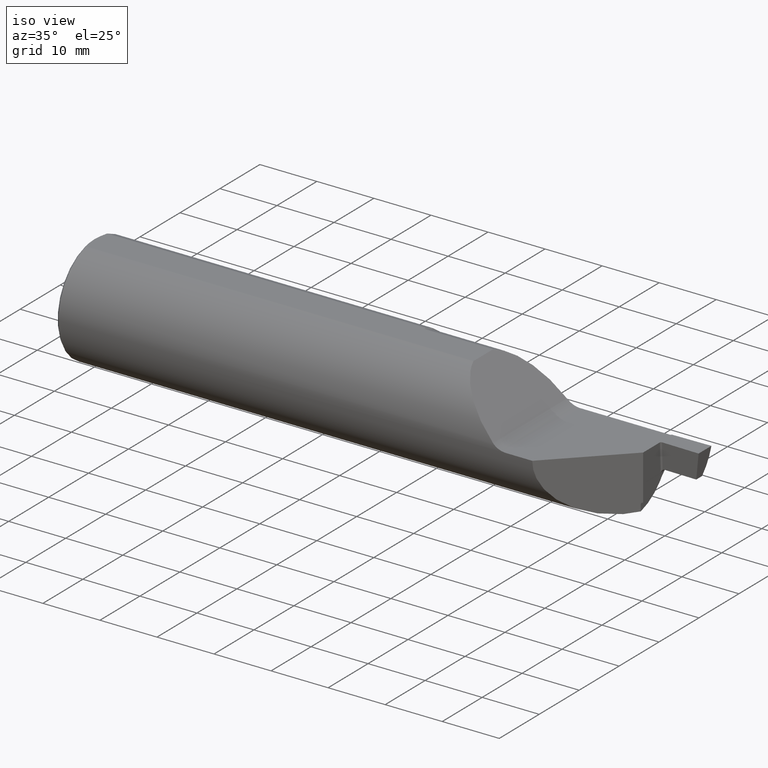
[diagram: clean part render]
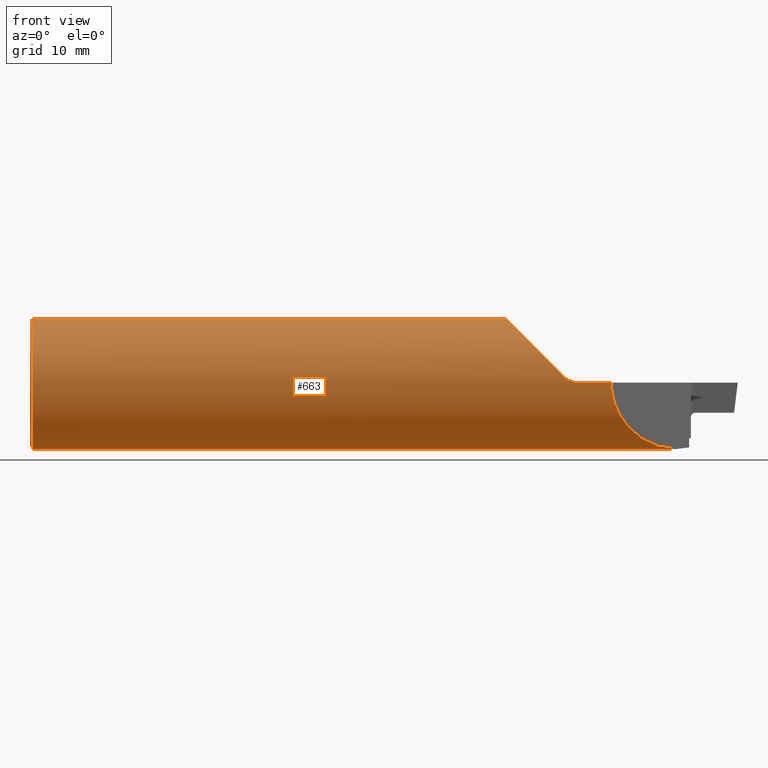
[diagram: tour spotlight — one face highlighted and labeled with its STEP entity id]
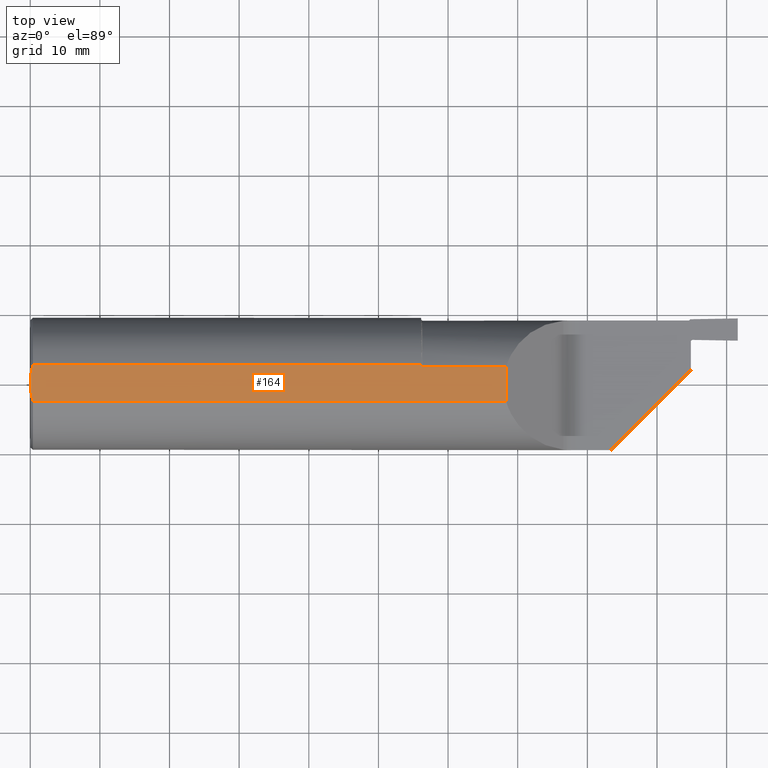
[diagram: tour spotlight — one face highlighted and labeled with its STEP entity id]
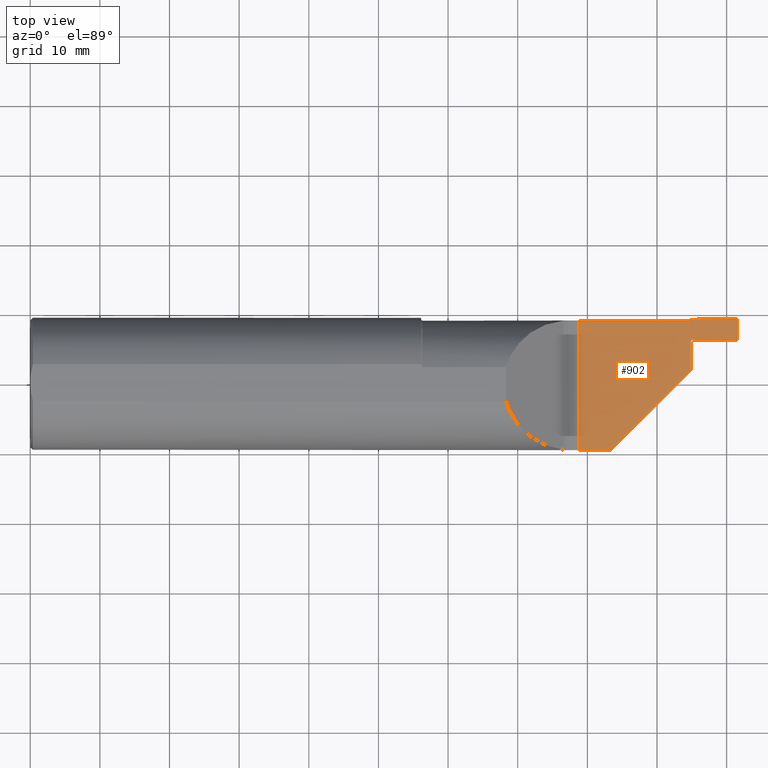
[diagram: tour spotlight — one face highlighted and labeled with its STEP entity id]
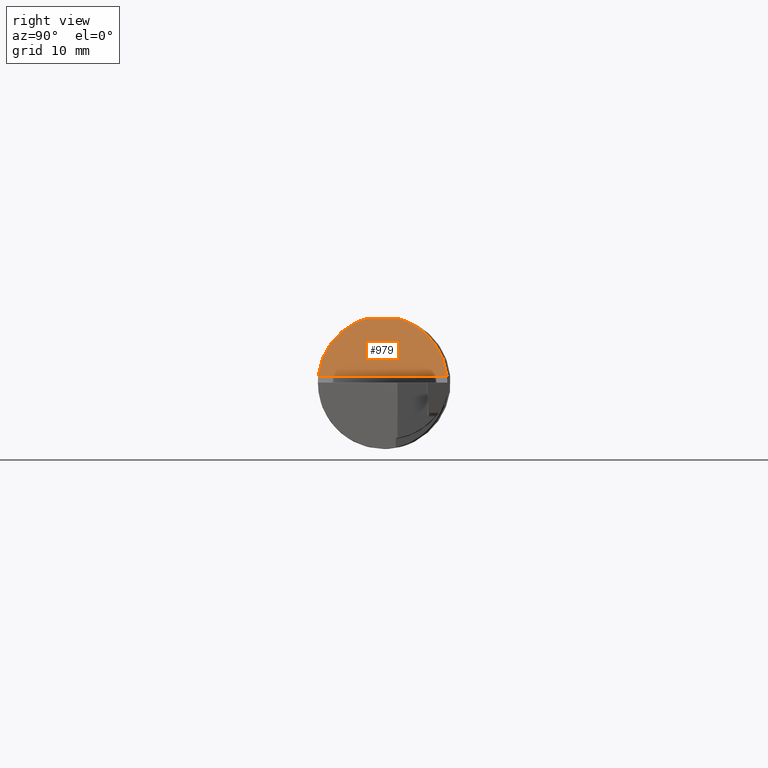
[diagram: tour spotlight — one face highlighted and labeled with its STEP entity id]
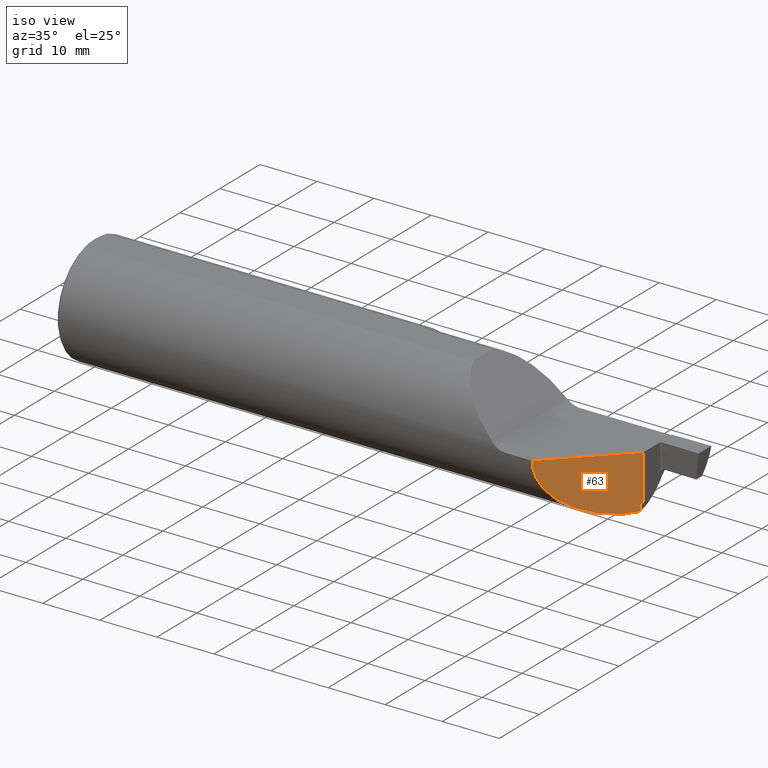
[diagram: tour spotlight — one face highlighted and labeled with its STEP entity id]
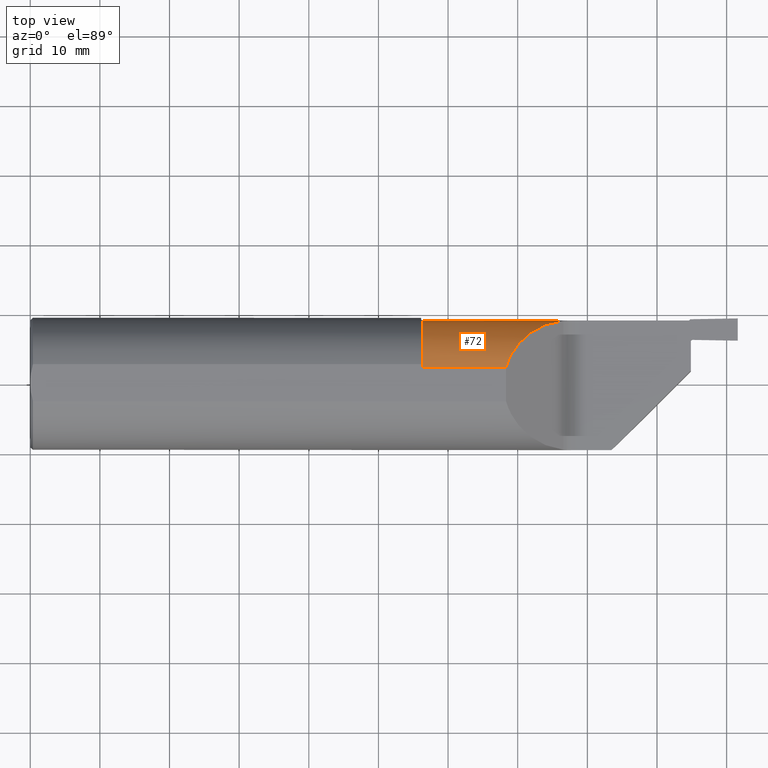
[diagram: tour spotlight — one face highlighted and labeled with its STEP entity id]
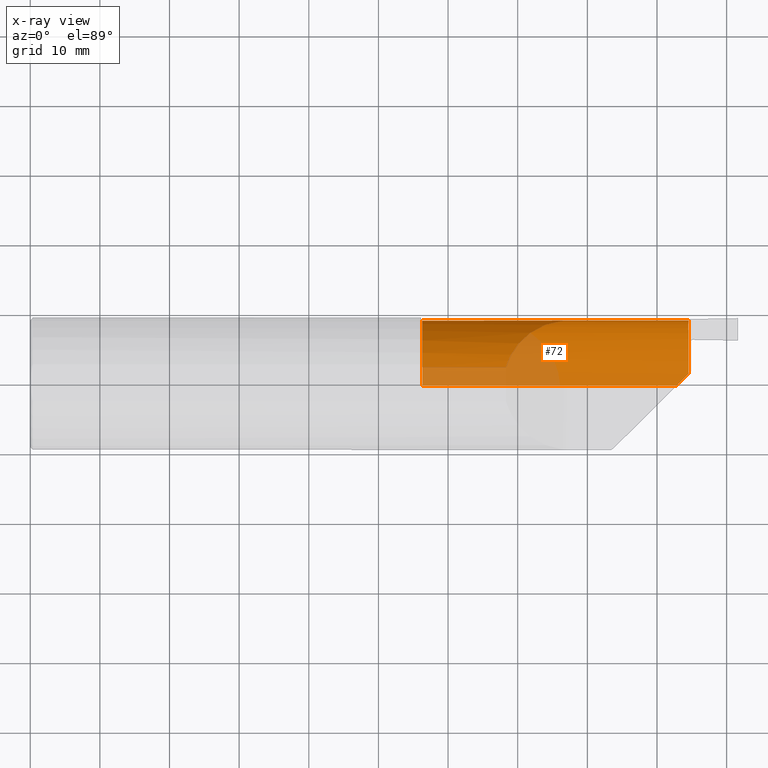
[diagram: x-ray of the same camera — body ghosted, this tour face saturated]
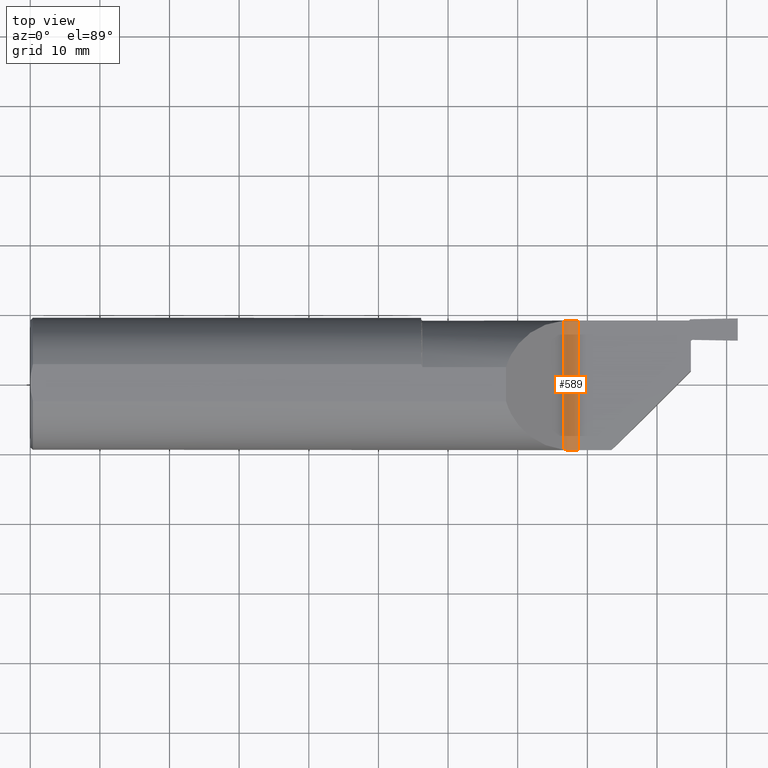
[diagram: tour spotlight — one face highlighted and labeled with its STEP entity id]
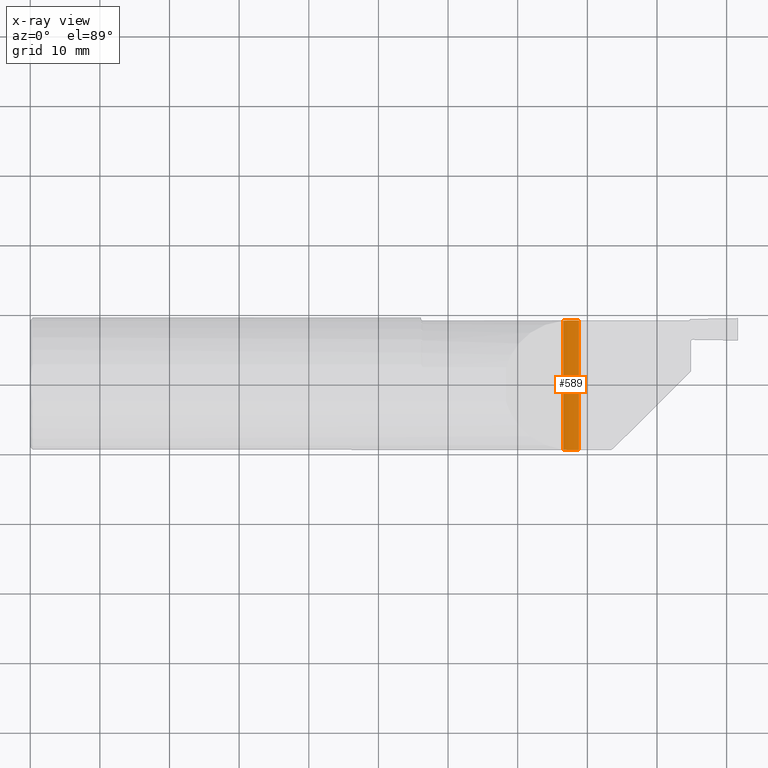
[diagram: x-ray of the same camera — body ghosted, this tour face saturated]
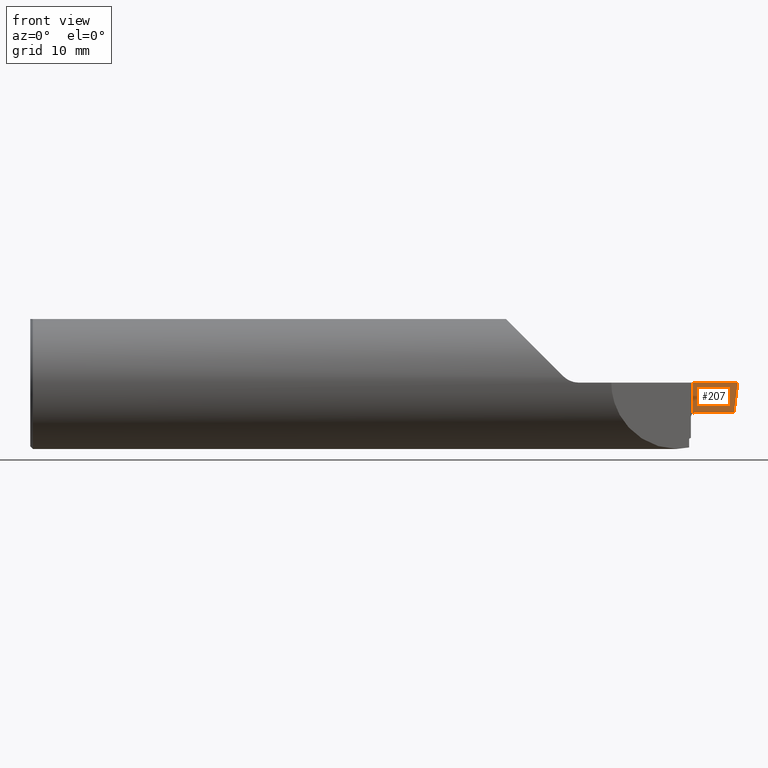
[diagram: tour spotlight — one face highlighted and labeled with its STEP entity id]
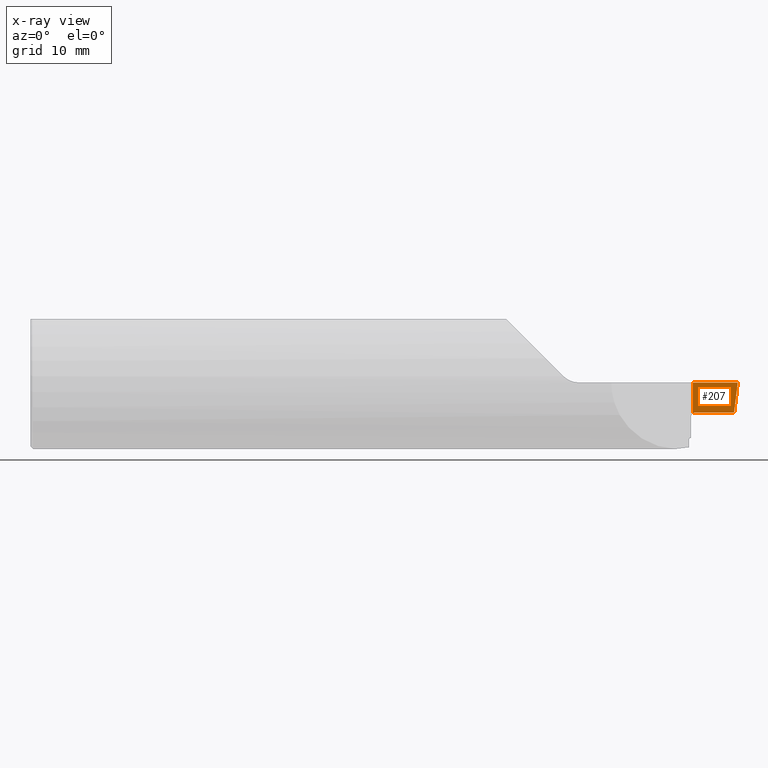
[diagram: x-ray of the same camera — body ghosted, this tour face saturated]
A machine part: a face-by-face anatomy tour. The part has 26 B-rep faces; the first image is the clean iso view, then the 8 largest visible faces are spotlighted one at a time (largest first), each with its STEP entity span.

Face 1 — front view, entity #663. In plain terms, the highlighted cylindrical surface (partial cylindrical patch) has radius 9.5212 mm, axis along (-1, -0, -0).
Definition (entity closure, byte-faithful):
#6 = CARTESIAN_POINT ( 'NONE',  ( 3.654553700959537910, -0.005296299040462346119, -0.3748125821213482700 ) ) ;
#16 = EDGE_CURVE ( 'NONE', #323, #789, #689, .T. ) ;
#24 = CARTESIAN_POINT ( 'NONE',  ( 0.01499999999999970281, 0.000000000000000000, -0.3748500000000001275 ) ) ;
#27 = DIRECTION ( 'NONE',  ( 0.000000000000000000, 0.000000000000000000, -1.000000000000000000 ) ) ;
#32 = ORIENTED_EDGE ( 'NONE', *, *, #403, .F. ) ;
#34 =( BOUNDED_CURVE ( )  B_SPLINE_CURVE ( 3, ( #6, #253, #717, #558 ),
 .UNSPECIFIED., .F., .T. ) 
 B_SPLINE_CURVE_WITH_KNOTS ( ( 4, 4 ),
 ( 4.726518566284859446, 6.283185307179586232 ),
 .UNSPECIFIED. ) 
 CURVE ( )  GEOMETRIC_REPRESENTATION_ITEM ( )  RATIONAL_B_SPLINE_CURVE ( ( 1.000000000000000000, 0.8080564375984994330, 0.8080564375984994330, 1.000000000000000000 ) ) 
 REPRESENTATION_ITEM ( '' )  );
#51 = LINE ( 'NONE', #754, #840 ) ;
#55 = EDGE_CURVE ( 'NONE', #643, #593, #700, .T. ) ;
#56 = CARTESIAN_POINT ( 'NONE',  ( 2.209999999999999520, 0.1714888527564265575, -0.3333228103209929793 ) ) ;
#61 = CARTESIAN_POINT ( 'NONE',  ( 3.013238347648311777, -0.3730577829399617240, 0.03661165235168221260 ) ) ;
#79 = CARTESIAN_POINT ( 'NONE',  ( 2.210579766348813369, 0.1049785692409357929, 0.3598500000001751409 ) ) ;
#84 = CARTESIAN_POINT ( 'NONE',  ( 3.025480383452218813, -0.3740067554628414004, 0.02553487587912180862 ) ) ;
#89 = CARTESIAN_POINT ( 'NONE',  ( 3.039056212294848791, -0.3745149928354791768, 0.01648038711453194208 ) ) ;
#98 = VERTEX_POINT ( 'NONE', #827 ) ;
#104 = CARTESIAN_POINT ( 'NONE',  ( 3.101626695296630487, -0.3748500000000000165, 0.000000000000000000 ) ) ;
#112 = CARTESIAN_POINT ( 'NONE',  ( 2.217999999999999527, -0.005296299040551805809, -0.3748125821213491582 ) ) ;
#117 = CIRCLE ( 'NONE', #984, 0.3748500000000000165 ) ;
#122 = DIRECTION ( 'NONE',  ( -1.000000000000000000, -0.000000000000000000, -0.000000000000000000 ) ) ;
#138 = CARTESIAN_POINT ( 'NONE',  ( 2.210159657165575720, 0.1280789630837260717, 0.3531109523566651753 ) ) ;
#143 = CARTESIAN_POINT ( 'NONE',  ( 2.209999999999999520, 0.1502426316186075417, 0.3442536256613089596 ) ) ;
#156 = CARTESIAN_POINT ( 'NONE',  ( 0.000000000000000000, -0.3748500000000000165, 0.000000000000000000 ) ) ;
#167 = ORIENTED_EDGE ( 'NONE', *, *, #55, .T. ) ;
#171 = EDGE_CURVE ( 'NONE', #593, #512, #302, .T. ) ;
#191 = CARTESIAN_POINT ( 'NONE',  ( 3.069292917219418104, -0.3748322207226623681, 0.003980296266681139332 ) ) ;
#201 = B_SPLINE_CURVE_WITH_KNOTS ( 'NONE', 3,
 ( #112, #258, #496, #360, #424, #609, #996, #901, #594, #927, #460, #211, #684, #748, #599, #526, #281, #223, #828, #907, #670, #56 ),
 .UNSPECIFIED., .F., .F.,
 ( 4, 2, 2, 2, 2, 2, 2, 2, 2, 2, 4 ),
 ( 1.970454648199582712E-07, 1.882808925676494294E-05, 3.745913304870988881E-05, 7.472122063259183198E-05, 0.0001492453958003556235, 0.0002982937461358870011, 0.0005963904468069523585, 0.001192583848149084700, 0.002384970650833350900, 0.003577357453517616449, 0.004769744256201882866 ),
 .UNSPECIFIED. ) ;
#211 = CARTESIAN_POINT ( 'NONE',  ( 2.214737504670940549, 0.009547592263952818514, -0.3747479557988489529 ) ) ;
#215 = B_SPLINE_CURVE_WITH_KNOTS ( 'NONE', 3,
 ( #826, #143, #138, #79 ),
 .UNSPECIFIED., .F., .F.,
 ( 4, 4 ),
 ( 0.007243651949323670278, 0.009102665532278453320 ),
 .UNSPECIFIED. ) ;
#221 = DIRECTION ( 'NONE',  ( 1.000000000000000000, 0.000000000000000000, 0.000000000000000000 ) ) ;
#223 = CARTESIAN_POINT ( 'NONE',  ( 2.210623646280942545, 0.1004983591039781549, -0.3614533511788128317 ) ) ;
#226 = CARTESIAN_POINT ( 'NONE',  ( 3.654553700959537910, -0.005296299040462346119, -0.3748125821213482700 ) ) ;
#243 = CIRCLE ( 'NONE', #790, 0.3748500000000000165 ) ;
#248 = CARTESIAN_POINT ( 'NONE',  ( 3.061359130489499147, -0.3748087929528916562, 0.006380633086640451895 ) ) ;
#253 = CARTESIAN_POINT ( 'NONE',  ( 3.437445499169105467, -0.2224045008308942473, -0.3717447289710875125 ) ) ;
#255 = ORIENTED_EDGE ( 'NONE', *, *, #171, .T. ) ;
#258 = CARTESIAN_POINT ( 'NONE',  ( 2.217752267574260472, -0.005296299040551710399, -0.3748125821213490472 ) ) ;
#269 = EDGE_CURVE ( 'NONE', #98, #462, #51, .T. ) ;
#279 = CARTESIAN_POINT ( 'NONE',  ( 2.209999999999999520, 0.1714888527564265575, -0.3333228103209929793 ) ) ;
#281 = CARTESIAN_POINT ( 'NONE',  ( 2.211371013746108449, 0.07058942196465760321, -0.3684638093051770813 ) ) ;
#297 = CARTESIAN_POINT ( 'NONE',  ( 0.01499999999999970281, 0.000000000000000000, 0.000000000000000000 ) ) ;
#302 = B_SPLINE_CURVE_WITH_KNOTS ( 'NONE', 3,
 ( #104, #634, #780, #191, #248, #507, #89, #84, #401, #705 ),
 .UNSPECIFIED., .F., .F.,
 ( 4, 2, 2, 2, 4 ),
 ( 0.000000000000000000, 0.0006199503241697987234, 0.001239900648339597447, 0.001859850972509396062, 0.002479801296679194893 ),
 .UNSPECIFIED. ) ;
#309 = CARTESIAN_POINT ( 'NONE',  ( 3.101626695296630487, -0.3748500000000000165, 0.000000000000000000 ) ) ;
#323 = VERTEX_POINT ( 'NONE', #761 ) ;
#328 = VECTOR ( 'NONE', #906, 39.37007874015748143 ) ;
#340 = CARTESIAN_POINT ( 'NONE',  ( 2.734266267726560784, -0.2567163625501296398, 0.3155837322734360018 ) ) ;
#348 = CARTESIAN_POINT ( 'NONE',  ( 0.01499999999999970281, 0.000000000000000000, 0.000000000000000000 ) ) ;
#357 = EDGE_CURVE ( 'NONE', #529, #643, #34, .T. ) ;
#360 = CARTESIAN_POINT ( 'NONE',  ( 2.217306534198622892, -0.004662217619967922236, -0.3748210611845189666 ) ) ;
#376 = CIRCLE ( 'NONE', #819, 0.3748500000000000165 ) ;
#392 = ORIENTED_EDGE ( 'NONE', *, *, #514, .T. ) ;
#401 = CARTESIAN_POINT ( 'NONE',  ( 3.019060788966111186, -0.3736291936090687660, 0.03078921103388285868 ) ) ;
#403 = EDGE_CURVE ( 'NONE', #455, #768, #117, .T. ) ;
#420 = DIRECTION ( 'NONE',  ( -1.000000000000000000, -0.000000000000000000, -0.000000000000000000 ) ) ;
#424 = CARTESIAN_POINT ( 'NONE',  ( 2.217205172110453759, -0.004442550266769258564, -0.3748237406597619281 ) ) ;
#455 = VERTEX_POINT ( 'NONE', #279 ) ;
#458 = AXIS2_PLACEMENT_3D ( 'NONE', #494, #420, #863 ) ;
#460 = CARTESIAN_POINT ( 'NONE',  ( 2.215441574561693550, 0.003804143292309238294, -0.3748355867472766834 ) ) ;
#462 = VERTEX_POINT ( 'NONE', #821 ) ;
#481 = DIRECTION ( 'NONE',  ( 1.000000000000000000, 0.000000000000000000, 0.000000000000000000 ) ) ;
#494 = CARTESIAN_POINT ( 'NONE',  ( 0.000000000000000000, 0.000000000000000000, 0.000000000000000000 ) ) ;
#496 = CARTESIAN_POINT ( 'NONE',  ( 2.217572357894051382, -0.005070499875742321555, -0.3748157603565183127 ) ) ;
#507 = CARTESIAN_POINT ( 'NONE',  ( 3.046230871488964542, -0.3746497198372802373, 0.01264638996857846837 ) ) ;
#512 = VERTEX_POINT ( 'NONE', #61 ) ;
#514 = EDGE_CURVE ( 'NONE', #789, #900, #243, .T. ) ;
#526 = CARTESIAN_POINT ( 'NONE',  ( 2.211858848559063340, 0.05547954033598817558, -0.3710392017518255314 ) ) ;
#529 = VERTEX_POINT ( 'NONE', #226 ) ;
#539 = ORIENTED_EDGE ( 'NONE', *, *, #992, .F. ) ;
#558 = CARTESIAN_POINT ( 'NONE',  ( 3.284999999999998366, -0.3748500000000000165, 0.000000000000000000 ) ) ;
#566 = ORIENTED_EDGE ( 'NONE', *, *, #584, .F. ) ;
#567 = CARTESIAN_POINT ( 'NONE',  ( 2.969999999999999751, -0.005296299040555572761, -0.3748125821213490472 ) ) ;
#573 =( BOUNDED_CURVE ( )  B_SPLINE_CURVE ( 3, ( #656, #962, #340, #888 ),
 .UNSPECIFIED., .F., .T. ) 
 B_SPLINE_CURVE_WITH_KNOTS ( ( 4, 4 ),
 ( 4.810215078472481309, 5.999334037848846002 ),
 .UNSPECIFIED. ) 
 CURVE ( )  GEOMETRIC_REPRESENTATION_ITEM ( )  RATIONAL_B_SPLINE_CURVE ( ( 1.000000000000000000, 0.8855968893122885266, 0.8855968893122885266, 1.000000000000000000 ) ) 
 REPRESENTATION_ITEM ( '' )  );
#584 = EDGE_CURVE ( 'NONE', #768, #462, #215, .T. ) ;
#586 = DIRECTION ( 'NONE',  ( 1.000000000000000000, 0.000000000000000000, 0.000000000000000000 ) ) ;
#588 = ORIENTED_EDGE ( 'NONE', *, *, #935, .T. ) ;
#593 = VERTEX_POINT ( 'NONE', #309 ) ;
#594 = CARTESIAN_POINT ( 'NONE',  ( 2.216221164986206915, -0.0009606553485408934499, -0.3748499724895911767 ) ) ;
#596 = VECTOR ( 'NONE', #930, 39.37007874015748143 ) ;
#599 = CARTESIAN_POINT ( 'NONE',  ( 2.213005920785810154, 0.03259117574744205964, -0.3735093362909827630 ) ) ;
#604 = CARTESIAN_POINT ( 'NONE',  ( 0.000000000000000000, -0.1049785692415360905, 0.3598500000000000587 ) ) ;
#609 = CARTESIAN_POINT ( 'NONE',  ( 2.216929290344706871, -0.003769662387745528840, -0.3748313132672870251 ) ) ;
#618 = ORIENTED_EDGE ( 'NONE', *, *, #767, .F. ) ;
#634 = CARTESIAN_POINT ( 'NONE',  ( 3.093373952877382038, -0.3748500000000000165, 1.500648922300925238E-19 ) ) ;
#643 = VERTEX_POINT ( 'NONE', #720 ) ;
#656 = CARTESIAN_POINT ( 'NONE',  ( 3.013238347648311777, -0.3730577829399617240, 0.03661165235168221260 ) ) ;
#663 = ADVANCED_FACE ( 'NONE', ( #942 ), #874, .T. ) ;
#665 = DIRECTION ( 'NONE',  ( 0.000000000000000000, 0.000000000000000000, -1.000000000000000000 ) ) ;
#667 = CARTESIAN_POINT ( 'NONE',  ( 2.209999999999999520, 0.1714888527564265575, 0.3333228103209929793 ) ) ;
#670 = CARTESIAN_POINT ( 'NONE',  ( 2.210000000000000409, 0.1579546063831414326, -0.3402859472909542937 ) ) ;
#678 = VECTOR ( 'NONE', #122, 39.37007874015748143 ) ;
#684 = CARTESIAN_POINT ( 'NONE',  ( 2.214386707770565454, 0.01338693522147573270, -0.3746306200492980909 ) ) ;
#689 = LINE ( 'NONE', #604, #328 ) ;
#694 = ORIENTED_EDGE ( 'NONE', *, *, #16, .T. ) ;
#700 = LINE ( 'NONE', #156, #596 ) ;
#703 = ORIENTED_EDGE ( 'NONE', *, *, #884, .T. ) ;
#705 = CARTESIAN_POINT ( 'NONE',  ( 3.013238347648311777, -0.3730577829399617240, 0.03661165235168221260 ) ) ;
#717 = CARTESIAN_POINT ( 'NONE',  ( 3.284999999999998366, -0.3748500000000001275, -0.2171298758983353783 ) ) ;
#720 = CARTESIAN_POINT ( 'NONE',  ( 3.284999999999998366, -0.3748500000000000165, 0.000000000000000000 ) ) ;
#729 = VERTEX_POINT ( 'NONE', #857 ) ;
#748 = CARTESIAN_POINT ( 'NONE',  ( 2.213452990021402389, 0.02491168912048800227, -0.3741003692830917049 ) ) ;
#754 = CARTESIAN_POINT ( 'NONE',  ( 0.000000000000000000, 0.1049785692415360905, 0.3598500000000000587 ) ) ;
#761 = CARTESIAN_POINT ( 'NONE',  ( 2.689999999999997282, -0.1049785692415360905, 0.3598500000000000587 ) ) ;
#767 = EDGE_CURVE ( 'NONE', #529, #729, #808, .T. ) ;
#768 = VERTEX_POINT ( 'NONE', #667 ) ;
#780 = CARTESIAN_POINT ( 'NONE',  ( 3.085258887130427841, -0.3748524796876536169, 0.0008092726799575600781 ) ) ;
#789 = VERTEX_POINT ( 'NONE', #897 ) ;
#790 = AXIS2_PLACEMENT_3D ( 'NONE', #297, #221, #983 ) ;
#802 = DIRECTION ( 'NONE',  ( 1.000000000000000000, 0.000000000000000000, 0.000000000000000000 ) ) ;
#808 = LINE ( 'NONE', #567, #678 ) ;
#819 = AXIS2_PLACEMENT_3D ( 'NONE', #348, #802, #665 ) ;
#821 = CARTESIAN_POINT ( 'NONE',  ( 2.210579766348813369, 0.1049785692409357929, 0.3598500000001751409 ) ) ;
#826 = CARTESIAN_POINT ( 'NONE',  ( 2.209999999999999520, 0.1714888527564265575, 0.3333228103209929793 ) ) ;
#827 = CARTESIAN_POINT ( 'NONE',  ( 0.01499999999999970281, 0.1049785692415360905, 0.3598500000000000587 ) ) ;
#828 = CARTESIAN_POINT ( 'NONE',  ( 2.210379091857773037, 0.1153330550303213464, -0.3569936850836157305 ) ) ;
#840 = VECTOR ( 'NONE', #586, 39.37007874015748143 ) ;
#851 = EDGE_LOOP ( 'NONE', ( #618, #891, #167, #255, #588, #694, #392, #703, #972, #566, #32, #539 ) ) ;
#857 = CARTESIAN_POINT ( 'NONE',  ( 2.217999999999999527, -0.005296299040551805809, -0.3748125821213491582 ) ) ;
#859 = CARTESIAN_POINT ( 'NONE',  ( 2.209999999999999520, 0.000000000000000000, 0.000000000000000000 ) ) ;
#863 = DIRECTION ( 'NONE',  ( 0.000000000000000000, 0.000000000000000000, 1.000000000000000000 ) ) ;
#874 = CYLINDRICAL_SURFACE ( 'NONE', #458, 0.3748500000000000165 ) ;
#884 = EDGE_CURVE ( 'NONE', #900, #98, #376, .T. ) ;
#888 = CARTESIAN_POINT ( 'NONE',  ( 2.689999999999997282, -0.1049785692415360905, 0.3598500000000000587 ) ) ;
#891 = ORIENTED_EDGE ( 'NONE', *, *, #357, .T. ) ;
#897 = CARTESIAN_POINT ( 'NONE',  ( 0.01499999999999943046, -0.1049785692415364929, 0.3598500000000000587 ) ) ;
#900 = VERTEX_POINT ( 'NONE', #24 ) ;
#901 = CARTESIAN_POINT ( 'NONE',  ( 2.216412161859623531, -0.001906298946121667186, -0.3748463109815587391 ) ) ;
#906 = DIRECTION ( 'NONE',  ( -1.000000000000000000, -0.000000000000000000, -0.000000000000000000 ) ) ;
#907 = CARTESIAN_POINT ( 'NONE',  ( 2.210067526557148998, 0.1440186858712267093, -0.3464171226890089827 ) ) ;
#927 = CARTESIAN_POINT ( 'NONE',  ( 2.215703358291751801, 0.001888924849824000175, -0.3748500545544785623 ) ) ;
#930 = DIRECTION ( 'NONE',  ( -1.000000000000000000, -0.000000000000000000, -0.000000000000000000 ) ) ;
#935 = EDGE_CURVE ( 'NONE', #512, #323, #573, .T. ) ;
#942 = FACE_OUTER_BOUND ( 'NONE', #851, .T. ) ;
#962 = CARTESIAN_POINT ( 'NONE',  ( 2.855931234240211225, -0.3576197633839645618, 0.1939187657597854497 ) ) ;
#972 = ORIENTED_EDGE ( 'NONE', *, *, #269, .T. ) ;
#983 = DIRECTION ( 'NONE',  ( 0.000000000000000000, 0.000000000000000000, -1.000000000000000000 ) ) ;
#984 = AXIS2_PLACEMENT_3D ( 'NONE', #859, #481, #27 ) ;
#992 = EDGE_CURVE ( 'NONE', #729, #455, #201, .T. ) ;
#996 = CARTESIAN_POINT ( 'NONE',  ( 2.216789350338707276, -0.003304024008752961487, -0.3748357280308114436 ) ) ;

Face 2 — top view, entity #164. In plain terms, the highlighted planar face has unit normal (0, 0, -1).
Definition (entity closure, byte-faithful):
#9 = CARTESIAN_POINT ( 'NONE',  ( 2.216455851056046811, 0.08881617181482387435, 0.3598500000000001142 ) ) ;
#16 = EDGE_CURVE ( 'NONE', #323, #789, #689, .T. ) ;
#23 = EDGE_CURVE ( 'NONE', #225, #843, #537, .T. ) ;
#39 = CARTESIAN_POINT ( 'NONE',  ( 2.210579766348813369, 0.1049785692409357929, 0.3598500000001751409 ) ) ;
#51 = LINE ( 'NONE', #754, #840 ) ;
#58 = B_SPLINE_CURVE_WITH_KNOTS ( 'NONE', 3,
 ( #250, #950, #254, #166, #329, #616 ),
 .UNSPECIFIED., .F., .F.,
 ( 4, 2, 4 ),
 ( 0.01171136364294326701, 0.01304549953612026483, 0.01437963542929726439 ),
 .UNSPECIFIED. ) ;
#66 = CARTESIAN_POINT ( 'NONE',  ( 2.689999999999997282, 0.1049785692415360905, 0.3598500000000000587 ) ) ;
#91 = CARTESIAN_POINT ( 'NONE',  ( 2.215300617303359143, 0.08993566199321981203, 0.3598500000000000032 ) ) ;
#98 = VERTEX_POINT ( 'NONE', #827 ) ;
#142 = ORIENTED_EDGE ( 'NONE', *, *, #322, .F. ) ;
#147 = ORIENTED_EDGE ( 'NONE', *, *, #699, .T. ) ;
#164 = ADVANCED_FACE ( 'NONE', ( #947 ), #713, .F. ) ;
#166 = CARTESIAN_POINT ( 'NONE',  ( 0.006411900415502796990, -0.07039581066864718240, 0.3598500000000000587 ) ) ;
#169 = CARTESIAN_POINT ( 'NONE',  ( 0.000000000000000000, -0.4748500000000000498, 0.3598500000000000587 ) ) ;
#212 = CARTESIAN_POINT ( 'NONE',  ( 2.211595892602971514, 0.09868602188013046728, 0.3598500000000000587 ) ) ;
#224 = VECTOR ( 'NONE', #750, 39.37007874015748143 ) ;
#225 = VERTEX_POINT ( 'NONE', #986 ) ;
#250 = CARTESIAN_POINT ( 'NONE',  ( 0.000000000000000000, 0.000000000000000000, 0.3598500000000002808 ) ) ;
#254 = CARTESIAN_POINT ( 'NONE',  ( 0.001321576766789423277, -0.03539347860735311824, 0.3598500000000000587 ) ) ;
#269 = EDGE_CURVE ( 'NONE', #98, #462, #51, .T. ) ;
#273 = AXIS2_PLACEMENT_3D ( 'NONE', #169, #963, #576 ) ;
#289 = CARTESIAN_POINT ( 'NONE',  ( 2.210987704991096425, 0.1018285334449099411, 0.3598500000000001697 ) ) ;
#321 = CARTESIAN_POINT ( 'NONE',  ( 2.217999999999999527, 0.08836216410824010437, 0.3598500000000000587 ) ) ;
#322 = EDGE_CURVE ( 'NONE', #462, #225, #846, .T. ) ;
#323 = VERTEX_POINT ( 'NONE', #761 ) ;
#324 = CARTESIAN_POINT ( 'NONE',  ( 0.01022888784974823433, 0.08794222170467017041, 0.3598500000000000587 ) ) ;
#328 = VECTOR ( 'NONE', #906, 39.37007874015748143 ) ;
#329 = CARTESIAN_POINT ( 'NONE',  ( 0.01020778106450297498, -0.08786685509883923606, 0.3598500000000000587 ) ) ;
#356 = CARTESIAN_POINT ( 'NONE',  ( 2.213065510350179288, 0.09415418544235593101, 0.3598500000000000587 ) ) ;
#383 = ORIENTED_EDGE ( 'NONE', *, *, #16, .F. ) ;
#395 = CARTESIAN_POINT ( 'NONE',  ( 2.214846637752241332, 0.09059647494096706444, 0.3598500000000000032 ) ) ;
#400 = CARTESIAN_POINT ( 'NONE',  ( 0.006468886088843410140, 0.07069195623599094924, 0.3598500000000000587 ) ) ;
#410 = CARTESIAN_POINT ( 'NONE',  ( 0.000000000000000000, 0.000000000000000000, 0.3598500000000002808 ) ) ;
#441 = B_SPLINE_CURVE_WITH_KNOTS ( 'NONE', 3,
 ( #625, #324, #400, #487, #633, #410 ),
 .UNSPECIFIED., .F., .F.,
 ( 4, 2, 4 ),
 ( 0.009040191376426372216, 0.01037577750968481961, 0.01171136364294326701 ),
 .UNSPECIFIED. ) ;
#462 = VERTEX_POINT ( 'NONE', #821 ) ;
#471 = EDGE_LOOP ( 'NONE', ( #809, #142, #964, #147, #497, #383, #592 ) ) ;
#483 = CARTESIAN_POINT ( 'NONE',  ( 0.000000000000000000, 0.000000000000000000, 0.3598500000000002808 ) ) ;
#487 = CARTESIAN_POINT ( 'NONE',  ( 0.001350055066226006628, 0.03568341562890089969, 0.3598500000000000587 ) ) ;
#492 = CARTESIAN_POINT ( 'NONE',  ( 2.689999999999997282, 0.08836216410823956313, 0.3598500000000000587 ) ) ;
#497 = ORIENTED_EDGE ( 'NONE', *, *, #817, .T. ) ;
#528 = LINE ( 'NONE', #66, #224 ) ;
#537 = LINE ( 'NONE', #757, #635 ) ;
#576 = DIRECTION ( 'NONE',  ( -1.000000000000000000, 0.000000000000000000, -0.000000000000000000 ) ) ;
#586 = DIRECTION ( 'NONE',  ( 1.000000000000000000, 0.000000000000000000, 0.000000000000000000 ) ) ;
#592 = ORIENTED_EDGE ( 'NONE', *, *, #799, .T. ) ;
#604 = CARTESIAN_POINT ( 'NONE',  ( 0.000000000000000000, -0.1049785692415360905, 0.3598500000000000587 ) ) ;
#606 = VERTEX_POINT ( 'NONE', #483 ) ;
#616 = CARTESIAN_POINT ( 'NONE',  ( 0.01499999999999943046, -0.1049785692415364929, 0.3598500000000000587 ) ) ;
#625 = CARTESIAN_POINT ( 'NONE',  ( 0.01499999999999970281, 0.1049785692415360905, 0.3598500000000000587 ) ) ;
#633 = CARTESIAN_POINT ( 'NONE',  ( -5.689126803211954851E-16, 0.01778463184081682108, 0.3598500000000000587 ) ) ;
#635 = VECTOR ( 'NONE', #681, 39.37007874015748143 ) ;
#660 = CARTESIAN_POINT ( 'NONE',  ( 2.213648801784078746, 0.09265420659088088873, 0.3598500000000000587 ) ) ;
#681 = DIRECTION ( 'NONE',  ( 1.000000000000000000, 0.000000000000000000, 0.000000000000000000 ) ) ;
#689 = LINE ( 'NONE', #604, #328 ) ;
#699 = EDGE_CURVE ( 'NONE', #98, #606, #441, .T. ) ;
#702 = CARTESIAN_POINT ( 'NONE',  ( 2.217202125020027559, 0.08836216410824726530, 0.3598500000000001142 ) ) ;
#713 = PLANE ( 'NONE',  #273 ) ;
#750 = DIRECTION ( 'NONE',  ( -0.000000000000000000, 1.000000000000000000, 0.000000000000000000 ) ) ;
#754 = CARTESIAN_POINT ( 'NONE',  ( 0.000000000000000000, 0.1049785692415360905, 0.3598500000000000587 ) ) ;
#757 = CARTESIAN_POINT ( 'NONE',  ( 2.209999999999999520, 0.08836216410823945211, 0.3598500000000000587 ) ) ;
#761 = CARTESIAN_POINT ( 'NONE',  ( 2.689999999999997282, -0.1049785692415360905, 0.3598500000000000587 ) ) ;
#789 = VERTEX_POINT ( 'NONE', #897 ) ;
#799 = EDGE_CURVE ( 'NONE', #323, #843, #528, .T. ) ;
#809 = ORIENTED_EDGE ( 'NONE', *, *, #23, .F. ) ;
#817 = EDGE_CURVE ( 'NONE', #606, #789, #58, .T. ) ;
#821 = CARTESIAN_POINT ( 'NONE',  ( 2.210579766348813369, 0.1049785692409357929, 0.3598500000001751409 ) ) ;
#827 = CARTESIAN_POINT ( 'NONE',  ( 0.01499999999999970281, 0.1049785692415360905, 0.3598500000000000587 ) ) ;
#840 = VECTOR ( 'NONE', #586, 39.37007874015748143 ) ;
#843 = VERTEX_POINT ( 'NONE', #492 ) ;
#846 = B_SPLINE_CURVE_WITH_KNOTS ( 'NONE', 3,
 ( #39, #289, #212, #356, #660, #395, #91, #9, #702, #321 ),
 .UNSPECIFIED., .F., .F.,
 ( 4, 2, 2, 2, 4 ),
 ( 0.002289254391228379669, 0.002533600921778679429, 0.002655774187053826924, 0.002716860819691395250, 0.002777947452328963576 ),
 .UNSPECIFIED. ) ;
#897 = CARTESIAN_POINT ( 'NONE',  ( 0.01499999999999943046, -0.1049785692415364929, 0.3598500000000000587 ) ) ;
#906 = DIRECTION ( 'NONE',  ( -1.000000000000000000, -0.000000000000000000, -0.000000000000000000 ) ) ;
#947 = FACE_OUTER_BOUND ( 'NONE', #471, .T. ) ;
#950 = CARTESIAN_POINT ( 'NONE',  ( -5.615428267250063162E-16, -0.01776532047984435980, 0.3598500000000000587 ) ) ;
#963 = DIRECTION ( 'NONE',  ( 0.000000000000000000, 0.000000000000000000, -1.000000000000000000 ) ) ;
#964 = ORIENTED_EDGE ( 'NONE', *, *, #269, .F. ) ;
#986 = CARTESIAN_POINT ( 'NONE',  ( 2.217999999999999527, 0.08836216410824010437, 0.3598500000000000587 ) ) ;

Face 3 — top view, entity #902. In plain terms, the highlighted planar face has unit normal (0, 0, -1).
Definition (entity closure, byte-faithful):
#3 = ORIENTED_EDGE ( 'NONE', *, *, #746, .T. ) ;
#18 = CARTESIAN_POINT ( 'NONE',  ( 3.721999999999999975, 0.3658492383597803377, 0.000000000000000000 ) ) ;
#22 = CARTESIAN_POINT ( 'NONE',  ( 3.734999999999999876, 0.2382987566360348086, 0.000000000000000000 ) ) ;
#29 = CARTESIAN_POINT ( 'NONE',  ( 3.101626695296630487, -0.4748500000000000498, 0.000000000000000000 ) ) ;
#33 = LINE ( 'NONE', #432, #326 ) ;
#44 = LINE ( 'NONE', #29, #237 ) ;
#55 = EDGE_CURVE ( 'NONE', #643, #593, #700, .T. ) ;
#65 = LINE ( 'NONE', #677, #227 ) ;
#68 = ORIENTED_EDGE ( 'NONE', *, *, #55, .F. ) ;
#102 = VERTEX_POINT ( 'NONE', #368 ) ;
#114 = VECTOR ( 'NONE', #478, 39.37007874015748854 ) ;
#120 = DIRECTION ( 'NONE',  ( 0.000000000000000000, -1.000000000000000000, 0.000000000000000000 ) ) ;
#130 = EDGE_CURVE ( 'NONE', #102, #552, #758, .T. ) ;
#156 = CARTESIAN_POINT ( 'NONE',  ( 0.000000000000000000, -0.3748500000000000165, 0.000000000000000000 ) ) ;
#170 = CARTESIAN_POINT ( 'NONE',  ( 4.000000000000000888, 0.2438492383597805624, 0.000000000000000000 ) ) ;
#184 = EDGE_LOOP ( 'NONE', ( #880, #711, #479, #68, #845, #873, #3, #568, #755, #414 ) ) ;
#192 = DIRECTION ( 'NONE',  ( -1.000000000000000000, 0.000000000000000000, 0.000000000000000000 ) ) ;
#217 = LINE ( 'NONE', #752, #651 ) ;
#227 = VECTOR ( 'NONE', #981, 39.37007874015748854 ) ;
#231 = DIRECTION ( 'NONE',  ( 0.000000000000000000, 1.000000000000000000, 0.000000000000000000 ) ) ;
#237 = VECTOR ( 'NONE', #120, 39.37007874015748143 ) ;
#247 = CARTESIAN_POINT ( 'NONE',  ( 3.745000000000000107, 0.2382987566360348086, 0.000000000000000000 ) ) ;
#267 = PLANE ( 'NONE',  #662 ) ;
#272 = DIRECTION ( 'NONE',  ( -1.000000000000000000, 0.000000000000000000, -0.000000000000000000 ) ) ;
#278 = VERTEX_POINT ( 'NONE', #361 ) ;
#303 = CARTESIAN_POINT ( 'NONE',  ( 3.729968125647831201, 0.3651358144602792066, 2.456528938052786683E-15 ) ) ;
#309 = CARTESIAN_POINT ( 'NONE',  ( 3.101626695296630487, -0.3748500000000000165, 0.000000000000000000 ) ) ;
#313 = VERTEX_POINT ( 'NONE', #371 ) ;
#317 = EDGE_CURVE ( 'NONE', #643, #613, #65, .T. ) ;
#326 = VECTOR ( 'NONE', #574, 39.37007874015748143 ) ;
#342 = LINE ( 'NONE', #853, #114 ) ;
#351 = DIRECTION ( 'NONE',  ( 0.000000000000000000, 0.000000000000000000, -1.000000000000000000 ) ) ;
#361 = CARTESIAN_POINT ( 'NONE',  ( 3.101626695296630487, 0.3578492383597801640, 0.000000000000000000 ) ) ;
#368 = CARTESIAN_POINT ( 'NONE',  ( 3.721999999999999975, 0.3578492383597800530, 0.000000000000000000 ) ) ;
#371 = CARTESIAN_POINT ( 'NONE',  ( 4.000000000000000000, 0.3698492383597805078, -8.537024980200822804E-16 ) ) ;
#399 = VERTEX_POINT ( 'NONE', #170 ) ;
#408 = CIRCLE ( 'NONE', #966, 0.01000000000000016674 ) ;
#414 = ORIENTED_EDGE ( 'NONE', *, *, #459, .F. ) ;
#432 = CARTESIAN_POINT ( 'NONE',  ( 4.280044616675976243, 0.3747374353266535452, 0.000000000000000000 ) ) ;
#452 = DIRECTION ( 'NONE',  ( 0.000000000000000000, 1.000000000000000000, 0.000000000000000000 ) ) ;
#459 = EDGE_CURVE ( 'NONE', #552, #313, #33, .T. ) ;
#478 = DIRECTION ( 'NONE',  ( 0.9998476951563912696, -0.01745240643727531335, 0.000000000000000000 ) ) ;
#479 = ORIENTED_EDGE ( 'NONE', *, *, #876, .T. ) ;
#491 = EDGE_CURVE ( 'NONE', #613, #654, #217, .T. ) ;
#500 = CARTESIAN_POINT ( 'NONE',  ( 3.049999999999999822, -0.4748500000000000498, 0.000000000000000000 ) ) ;
#506 = FACE_OUTER_BOUND ( 'NONE', #184, .T. ) ;
#516 = VERTEX_POINT ( 'NONE', #536 ) ;
#536 = CARTESIAN_POINT ( 'NONE',  ( 3.745174632301676798, 0.2482972316983096672, -4.055086865595390561E-17 ) ) ;
#552 = VERTEX_POINT ( 'NONE', #303 ) ;
#568 = ORIENTED_EDGE ( 'NONE', *, *, #685, .T. ) ;
#574 = DIRECTION ( 'NONE',  ( 0.9998476951563914916, 0.01745240643726934937, 0.000000000000000000 ) ) ;
#585 = LINE ( 'NONE', #737, #774 ) ;
#593 = VERTEX_POINT ( 'NONE', #309 ) ;
#596 = VECTOR ( 'NONE', #930, 39.37007874015748143 ) ;
#601 = EDGE_CURVE ( 'NONE', #399, #313, #612, .T. ) ;
#612 = LINE ( 'NONE', #929, #701 ) ;
#613 = VERTEX_POINT ( 'NONE', #644 ) ;
#641 = DIRECTION ( 'NONE',  ( -0.000000000000000000, -0.000000000000000000, 1.000000000000000000 ) ) ;
#643 = VERTEX_POINT ( 'NONE', #720 ) ;
#644 = CARTESIAN_POINT ( 'NONE',  ( 3.734999999999999876, 0.07514999999999995295, 0.000000000000000000 ) ) ;
#651 = VECTOR ( 'NONE', #452, 39.37007874015748143 ) ;
#654 = VERTEX_POINT ( 'NONE', #22 ) ;
#662 = AXIS2_PLACEMENT_3D ( 'NONE', #500, #351, #272 ) ;
#677 = CARTESIAN_POINT ( 'NONE',  ( 3.117499999999998828, -0.5423499999999991106, 0.000000000000000000 ) ) ;
#685 = EDGE_CURVE ( 'NONE', #516, #399, #342, .T. ) ;
#700 = LINE ( 'NONE', #156, #596 ) ;
#701 = VECTOR ( 'NONE', #231, 39.37007874015748143 ) ;
#711 = ORIENTED_EDGE ( 'NONE', *, *, #870, .F. ) ;
#720 = CARTESIAN_POINT ( 'NONE',  ( 3.284999999999998366, -0.3748500000000000165, 0.000000000000000000 ) ) ;
#737 = CARTESIAN_POINT ( 'NONE',  ( 2.209999999999999520, 0.3578492383597801640, 0.000000000000000000 ) ) ;
#746 = EDGE_CURVE ( 'NONE', #654, #516, #408, .T. ) ;
#752 = CARTESIAN_POINT ( 'NONE',  ( 3.734999999999999876, -0.4748500000000000498, 0.000000000000000000 ) ) ;
#755 = ORIENTED_EDGE ( 'NONE', *, *, #601, .T. ) ;
#758 = CIRCLE ( 'NONE', #762, 0.008000000000000024453 ) ;
#762 = AXIS2_PLACEMENT_3D ( 'NONE', #18, #641, #792 ) ;
#774 = VECTOR ( 'NONE', #899, 39.37007874015748143 ) ;
#792 = DIRECTION ( 'NONE',  ( -1.000000000000000000, 8.537024980200796575E-15, 0.000000000000000000 ) ) ;
#845 = ORIENTED_EDGE ( 'NONE', *, *, #317, .T. ) ;
#853 = CARTESIAN_POINT ( 'NONE',  ( 3.062830478015536873, 0.2602075932147583370, 0.000000000000000000 ) ) ;
#870 = EDGE_CURVE ( 'NONE', #278, #102, #585, .T. ) ;
#873 = ORIENTED_EDGE ( 'NONE', *, *, #491, .T. ) ;
#876 = EDGE_CURVE ( 'NONE', #278, #593, #44, .T. ) ;
#880 = ORIENTED_EDGE ( 'NONE', *, *, #130, .F. ) ;
#889 = DIRECTION ( 'NONE',  ( 0.000000000000000000, 0.000000000000000000, -1.000000000000000000 ) ) ;
#899 = DIRECTION ( 'NONE',  ( 1.000000000000000000, 0.000000000000000000, 0.000000000000000000 ) ) ;
#902 = ADVANCED_FACE ( 'NONE', ( #506 ), #267, .F. ) ;
#929 = CARTESIAN_POINT ( 'NONE',  ( 4.000000000000000000, -0.4748500000000000498, 0.000000000000000000 ) ) ;
#930 = DIRECTION ( 'NONE',  ( -1.000000000000000000, -0.000000000000000000, -0.000000000000000000 ) ) ;
#966 = AXIS2_PLACEMENT_3D ( 'NONE', #247, #889, #192 ) ;
#981 = DIRECTION ( 'NONE',  ( 0.7071067811865486830, 0.7071067811865462405, 0.000000000000000000 ) ) ;

Face 4 — right view, entity #979. In plain terms, the highlighted planar face has unit normal (0.7071, -0, 0.7071).
Definition (entity closure, byte-faithful):
#25 = EDGE_LOOP ( 'NONE', ( #878, #995, #307, #998 ) ) ;
#38 = CARTESIAN_POINT ( 'NONE',  ( 3.013238347648311333, 0.3560577416285020114, 0.03661165235168205301 ) ) ;
#61 = CARTESIAN_POINT ( 'NONE',  ( 3.013238347648311777, -0.3730577829399617240, 0.03661165235168221260 ) ) ;
#66 = CARTESIAN_POINT ( 'NONE',  ( 2.689999999999997282, 0.1049785692415360905, 0.3598500000000000587 ) ) ;
#121 = LINE ( 'NONE', #141, #538 ) ;
#125 = DIRECTION ( 'NONE',  ( 0.7071067811865440200, 0.000000000000000000, -0.7071067811865509034 ) ) ;
#137 = VERTEX_POINT ( 'NONE', #268 ) ;
#141 = CARTESIAN_POINT ( 'NONE',  ( 3.013238347648311777, 0.4748500000000000498, 0.03661165235168221954 ) ) ;
#182 = CARTESIAN_POINT ( 'NONE',  ( 2.689999999999997282, 0.08836216410823956313, 0.3598500000000000587 ) ) ;
#197 = CARTESIAN_POINT ( 'NONE',  ( 3.049999999999999822, 0.4748500000000000498, -0.0001500000000062119774 ) ) ;
#224 = VECTOR ( 'NONE', #750, 39.37007874015748143 ) ;
#268 = CARTESIAN_POINT ( 'NONE',  ( 3.013238347648311333, 0.3560577416285020114, 0.03661165235168205301 ) ) ;
#286 = AXIS2_PLACEMENT_3D ( 'NONE', #197, #812, #125 ) ;
#304 = EDGE_CURVE ( 'NONE', #512, #137, #121, .T. ) ;
#307 = ORIENTED_EDGE ( 'NONE', *, *, #799, .F. ) ;
#323 = VERTEX_POINT ( 'NONE', #761 ) ;
#340 = CARTESIAN_POINT ( 'NONE',  ( 2.734266267726560784, -0.2567163625501296398, 0.3155837322734360018 ) ) ;
#439 = PLANE ( 'NONE',  #286 ) ;
#454 = DIRECTION ( 'NONE',  ( -0.000000000000000000, 1.000000000000000000, -0.000000000000000000 ) ) ;
#492 = CARTESIAN_POINT ( 'NONE',  ( 2.689999999999997282, 0.08836216410823956313, 0.3598500000000000587 ) ) ;
#512 = VERTEX_POINT ( 'NONE', #61 ) ;
#518 =( BOUNDED_CURVE ( )  B_SPLINE_CURVE ( 3, ( #38, #579, #894, #182 ),
 .UNSPECIFIED., .F., .T. ) 
 B_SPLINE_CURVE_WITH_KNOTS ( ( 4, 4 ),
 ( 4.810175822803776313, 5.997966107572837657 ),
 .UNSPECIFIED. ) 
 CURVE ( )  GEOMETRIC_REPRESENTATION_ITEM ( )  RATIONAL_B_SPLINE_CURVE ( ( 1.000000000000000000, 0.8858448504099136755, 0.8858448504099136755, 1.000000000000000000 ) ) 
 REPRESENTATION_ITEM ( '' )  );
#528 = LINE ( 'NONE', #66, #224 ) ;
#538 = VECTOR ( 'NONE', #454, 39.37007874015748143 ) ;
#573 =( BOUNDED_CURVE ( )  B_SPLINE_CURVE ( 3, ( #656, #962, #340, #888 ),
 .UNSPECIFIED., .F., .T. ) 
 B_SPLINE_CURVE_WITH_KNOTS ( ( 4, 4 ),
 ( 4.810215078472481309, 5.999334037848846002 ),
 .UNSPECIFIED. ) 
 CURVE ( )  GEOMETRIC_REPRESENTATION_ITEM ( )  RATIONAL_B_SPLINE_CURVE ( ( 1.000000000000000000, 0.8855968893122885266, 0.8855968893122885266, 1.000000000000000000 ) ) 
 REPRESENTATION_ITEM ( '' )  );
#579 = CARTESIAN_POINT ( 'NONE',  ( 2.856066336462941724, 0.3406392102109843112, 0.1937836635370545346 ) ) ;
#656 = CARTESIAN_POINT ( 'NONE',  ( 3.013238347648311777, -0.3730577829399617240, 0.03661165235168221260 ) ) ;
#750 = DIRECTION ( 'NONE',  ( -0.000000000000000000, 1.000000000000000000, 0.000000000000000000 ) ) ;
#761 = CARTESIAN_POINT ( 'NONE',  ( 2.689999999999997282, -0.1049785692415360905, 0.3598500000000000587 ) ) ;
#799 = EDGE_CURVE ( 'NONE', #323, #843, #528, .T. ) ;
#812 = DIRECTION ( 'NONE',  ( 0.7071067811865510144, -0.000000000000000000, 0.7071067811865441310 ) ) ;
#843 = VERTEX_POINT ( 'NONE', #492 ) ;
#877 = FACE_OUTER_BOUND ( 'NONE', #25, .T. ) ;
#878 = ORIENTED_EDGE ( 'NONE', *, *, #304, .T. ) ;
#888 = CARTESIAN_POINT ( 'NONE',  ( 2.689999999999997282, -0.1049785692415360905, 0.3598500000000000587 ) ) ;
#894 = CARTESIAN_POINT ( 'NONE',  ( 2.734435425775913586, 0.2399084116607304029, 0.3154145742240833661 ) ) ;
#935 = EDGE_CURVE ( 'NONE', #512, #323, #573, .T. ) ;
#962 = CARTESIAN_POINT ( 'NONE',  ( 2.855931234240211225, -0.3576197633839645618, 0.1939187657597854497 ) ) ;
#974 = EDGE_CURVE ( 'NONE', #137, #843, #518, .T. ) ;
#979 = ADVANCED_FACE ( 'NONE', ( #877 ), #439, .T. ) ;
#995 = ORIENTED_EDGE ( 'NONE', *, *, #974, .T. ) ;
#998 = ORIENTED_EDGE ( 'NONE', *, *, #935, .F. ) ;

Face 5 — iso view, entity #63. In plain terms, the highlighted planar face has unit normal (-0.7071, 0.7071, 0).
Definition (entity closure, byte-faithful):
#6 = CARTESIAN_POINT ( 'NONE',  ( 3.654553700959537910, -0.005296299040462346119, -0.3748125821213482700 ) ) ;
#14 = VECTOR ( 'NONE', #560, 39.37007874015748143 ) ;
#26 = LINE ( 'NONE', #103, #14 ) ;
#28 = EDGE_CURVE ( 'NONE', #409, #296, #135, .T. ) ;
#34 =( BOUNDED_CURVE ( )  B_SPLINE_CURVE ( 3, ( #6, #253, #717, #558 ),
 .UNSPECIFIED., .F., .T. ) 
 B_SPLINE_CURVE_WITH_KNOTS ( ( 4, 4 ),
 ( 4.726518566284859446, 6.283185307179586232 ),
 .UNSPECIFIED. ) 
 CURVE ( )  GEOMETRIC_REPRESENTATION_ITEM ( )  RATIONAL_B_SPLINE_CURVE ( ( 1.000000000000000000, 0.8080564375984994330, 0.8080564375984994330, 1.000000000000000000 ) ) 
 REPRESENTATION_ITEM ( '' )  );
#63 = ADVANCED_FACE ( 'NONE', ( #925 ), #210, .F. ) ;
#65 = LINE ( 'NONE', #677, #227 ) ;
#70 = CARTESIAN_POINT ( 'NONE',  ( 3.721999999999999975, 0.06214999999999998304, -0.3665192889921086716 ) ) ;
#82 = CARTESIAN_POINT ( 'NONE',  ( 3.734900000000000109, 0.07505000000000010274, -0.1949999999999998956 ) ) ;
#85 = VECTOR ( 'NONE', #563, 39.37007874015748143 ) ;
#86 = CARTESIAN_POINT ( 'NONE',  ( 3.725356951150462947, 0.06550695115046323291, -0.3191775724663117320 ) ) ;
#103 = CARTESIAN_POINT ( 'NONE',  ( 3.725356951150462947, 0.06550695115046323291, 0.02800000000000001446 ) ) ;
#113 = ORIENTED_EDGE ( 'NONE', *, *, #338, .T. ) ;
#129 = CARTESIAN_POINT ( 'NONE',  ( 3.734899999999999665, 0.07505000000000003335, -0.1942541465229824516 ) ) ;
#135 = B_SPLINE_CURVE_WITH_KNOTS ( 'NONE', 3,
 ( #839, #598, #389, #70 ),
 .UNSPECIFIED., .F., .F.,
 ( 4, 4 ),
 ( 0.0003029670712482040746, 0.0004242163928796682435 ),
 .UNSPECIFIED. ) ;
#161 = VECTOR ( 'NONE', #595, 39.37007874015748143 ) ;
#165 = CARTESIAN_POINT ( 'NONE',  ( 3.731816153851691187, 0.07196615385169088941, -0.3132570728798828030 ) ) ;
#185 = CARTESIAN_POINT ( 'NONE',  ( 3.730271921661295842, 0.07042192166129628006, -0.3134755946351024947 ) ) ;
#189 = CARTESIAN_POINT ( 'NONE',  ( 3.699799971068683302, 0.03994997106868271308, -0.3713225265175593148 ) ) ;
#194 = ORIENTED_EDGE ( 'NONE', *, *, #646, .F. ) ;
#203 = CARTESIAN_POINT ( 'NONE',  ( 3.734900000000000109, 0.07505000000000010274, -0.1949999999999998956 ) ) ;
#206 = CARTESIAN_POINT ( 'NONE',  ( 3.734999999999999876, 0.07514999999999995295, -0.1927661692096327151 ) ) ;
#210 = PLANE ( 'NONE',  #804 ) ;
#226 = CARTESIAN_POINT ( 'NONE',  ( 3.654553700959537910, -0.005296299040462346119, -0.3748125821213482700 ) ) ;
#227 = VECTOR ( 'NONE', #981, 39.37007874015748854 ) ;
#228 = CARTESIAN_POINT ( 'NONE',  ( 3.734999999999999876, 0.07514999999999995295, -0.3748500000000000165 ) ) ;
#229 = EDGE_CURVE ( 'NONE', #260, #498, #622, .T. ) ;
#233 = EDGE_CURVE ( 'NONE', #260, #613, #515, .T. ) ;
#246 = VERTEX_POINT ( 'NONE', #829 ) ;
#253 = CARTESIAN_POINT ( 'NONE',  ( 3.437445499169105467, -0.2224045008308942473, -0.3717447289710875125 ) ) ;
#257 = CARTESIAN_POINT ( 'NONE',  ( 3.725356951150478491, 0.06550695115047865114, -0.3665338257960438773 ) ) ;
#260 = VERTEX_POINT ( 'NONE', #206 ) ;
#274 = CARTESIAN_POINT ( 'NONE',  ( 3.734999999999999876, 0.07514999999999995295, -0.3748500000000000165 ) ) ;
#296 = VERTEX_POINT ( 'NONE', #968 ) ;
#301 = ORIENTED_EDGE ( 'NONE', *, *, #317, .F. ) ;
#314 = CARTESIAN_POINT ( 'NONE',  ( 3.654553700959537910, -0.005296299040462346119, -0.3748125821213482700 ) ) ;
#317 = EDGE_CURVE ( 'NONE', #643, #613, #65, .T. ) ;
#330 = VERTEX_POINT ( 'NONE', #86 ) ;
#338 = EDGE_CURVE ( 'NONE', #246, #498, #621, .T. ) ;
#339 = CARTESIAN_POINT ( 'NONE',  ( 3.728004246623508600, 0.06815424662350826057, -0.3141833022011719101 ) ) ;
#352 = EDGE_CURVE ( 'NONE', #330, #820, #747, .T. ) ;
#354 = ORIENTED_EDGE ( 'NONE', *, *, #398, .T. ) ;
#357 = EDGE_CURVE ( 'NONE', #529, #643, #34, .T. ) ;
#366 =( BOUNDED_CURVE ( )  B_SPLINE_CURVE ( 3, ( #645, #165, #953, #801 ),
 .UNSPECIFIED., .F., .F. ) 
 B_SPLINE_CURVE_WITH_KNOTS ( ( 4, 4 ),
 ( 1.713856513948035065, 1.727184276379804873 ),
 .UNSPECIFIED. ) 
 CURVE ( )  GEOMETRIC_REPRESENTATION_ITEM ( )  RATIONAL_B_SPLINE_CURVE ( ( 1.000000000000000000, 0.9999851976171580947, 0.9999851976171580947, 1.000000000000000000 ) ) 
 REPRESENTATION_ITEM ( '' )  );
#367 = CARTESIAN_POINT ( 'NONE',  ( 3.721999999999999975, 0.06214999999999998304, -0.3665192889921086716 ) ) ;
#374 = DIRECTION ( 'NONE',  ( -0.7071067811865463515, 0.7071067811865487940, 0.000000000000000000 ) ) ;
#389 = CARTESIAN_POINT ( 'NONE',  ( 3.723117759223455892, 0.06326775922345594105, -0.3662774486294897436 ) ) ;
#398 = EDGE_CURVE ( 'NONE', #820, #246, #366, .T. ) ;
#409 = VERTEX_POINT ( 'NONE', #257 ) ;
#412 = CARTESIAN_POINT ( 'NONE',  ( 3.725356951150462947, 0.06550695115046323291, -0.3191775724663117320 ) ) ;
#425 = ORIENTED_EDGE ( 'NONE', *, *, #233, .T. ) ;
#431 = ORIENTED_EDGE ( 'NONE', *, *, #229, .F. ) ;
#443 = ORIENTED_EDGE ( 'NONE', *, *, #352, .T. ) ;
#466 = EDGE_CURVE ( 'NONE', #296, #529, #881, .T. ) ;
#498 = VERTEX_POINT ( 'NONE', #82 ) ;
#515 = LINE ( 'NONE', #274, #161 ) ;
#527 = CARTESIAN_POINT ( 'NONE',  ( 3.734933355581516956, 0.07508335558151733868, -0.1935090392727421282 ) ) ;
#529 = VERTEX_POINT ( 'NONE', #226 ) ;
#541 = DIRECTION ( 'NONE',  ( -0.7071067811865486830, -0.7071067811865462405, 0.000000000000000000 ) ) ;
#543 = CARTESIAN_POINT ( 'NONE',  ( 3.677256053650980405, 0.01740605365098036109, -0.3740945587578186071 ) ) ;
#558 = CARTESIAN_POINT ( 'NONE',  ( 3.284999999999998366, -0.3748500000000000165, 0.000000000000000000 ) ) ;
#560 = DIRECTION ( 'NONE',  ( 0.000000000000000000, 0.000000000000000000, -1.000000000000000000 ) ) ;
#563 = DIRECTION ( 'NONE',  ( 0.000000000000000000, 0.000000000000000000, 1.000000000000000000 ) ) ;
#569 = CARTESIAN_POINT ( 'NONE',  ( 3.734900000000000109, 0.07505000000000013050, -0.3748500000000000165 ) ) ;
#580 = CARTESIAN_POINT ( 'NONE',  ( 3.734999999999999876, 0.07514999999999995295, -0.1927661692096327151 ) ) ;
#595 = DIRECTION ( 'NONE',  ( -0.000000000000000000, -0.000000000000000000, 1.000000000000000000 ) ) ;
#598 = CARTESIAN_POINT ( 'NONE',  ( 3.724252248945799426, 0.06440224894579954507, -0.3662594340576433294 ) ) ;
#613 = VERTEX_POINT ( 'NONE', #644 ) ;
#621 = LINE ( 'NONE', #569, #85 ) ;
#622 =( BOUNDED_CURVE ( )  B_SPLINE_CURVE ( 3, ( #580, #527, #129, #203 ),
 .UNSPECIFIED., .F., .F. ) 
 B_SPLINE_CURVE_WITH_KNOTS ( ( 4, 4 ),
 ( 6.193712746975158723, 6.283185307179586232 ),
 .UNSPECIFIED. ) 
 CURVE ( )  GEOMETRIC_REPRESENTATION_ITEM ( )  RATIONAL_B_SPLINE_CURVE ( ( 1.000000000000000000, 0.9993329996662503323, 0.9993329996662503323, 1.000000000000000000 ) ) 
 REPRESENTATION_ITEM ( '' )  );
#642 = CARTESIAN_POINT ( 'NONE',  ( 3.725356951150462947, 0.06550695115046323291, -0.3175262017791198876 ) ) ;
#643 = VERTEX_POINT ( 'NONE', #720 ) ;
#644 = CARTESIAN_POINT ( 'NONE',  ( 3.734999999999999876, 0.07514999999999995295, 0.000000000000000000 ) ) ;
#645 = CARTESIAN_POINT ( 'NONE',  ( 3.730271921661295842, 0.07042192166129628006, -0.3134755946351024947 ) ) ;
#646 = EDGE_CURVE ( 'NONE', #330, #409, #26, .T. ) ;
#677 = CARTESIAN_POINT ( 'NONE',  ( 3.117499999999998828, -0.5423499999999991106, 0.000000000000000000 ) ) ;
#717 = CARTESIAN_POINT ( 'NONE',  ( 3.284999999999998366, -0.3748500000000001275, -0.2171298758983353783 ) ) ;
#719 = ORIENTED_EDGE ( 'NONE', *, *, #28, .F. ) ;
#720 = CARTESIAN_POINT ( 'NONE',  ( 3.284999999999998366, -0.3748500000000000165, 0.000000000000000000 ) ) ;
#747 = B_SPLINE_CURVE_WITH_KNOTS ( 'NONE', 3,
 ( #412, #642, #875, #339, #949, #185 ),
 .UNSPECIFIED., .F., .F.,
 ( 4, 2, 4 ),
 ( 0.000000000000000000, 0.0001235505817635645085, 0.0002471011635271290171 ),
 .UNSPECIFIED. ) ;
#763 = ORIENTED_EDGE ( 'NONE', *, *, #357, .F. ) ;
#801 = CARTESIAN_POINT ( 'NONE',  ( 3.734900000000000109, 0.07505000000000013050, -0.3127897260508442634 ) ) ;
#804 = AXIS2_PLACEMENT_3D ( 'NONE', #228, #374, #541 ) ;
#820 = VERTEX_POINT ( 'NONE', #871 ) ;
#829 = CARTESIAN_POINT ( 'NONE',  ( 3.734900000000000109, 0.07505000000000013050, -0.3127897260508442634 ) ) ;
#839 = CARTESIAN_POINT ( 'NONE',  ( 3.725356951150478491, 0.06550695115047865114, -0.3665338257960438773 ) ) ;
#847 = EDGE_LOOP ( 'NONE', ( #354, #113, #431, #425, #301, #763, #945, #719, #194, #443 ) ) ;
#871 = CARTESIAN_POINT ( 'NONE',  ( 3.730271921661295842, 0.07042192166129628006, -0.3134755946351024947 ) ) ;
#875 = CARTESIAN_POINT ( 'NONE',  ( 3.726128965553293426, 0.06627896555329375328, -0.3160863294221484820 ) ) ;
#881 =( BOUNDED_CURVE ( )  B_SPLINE_CURVE ( 3, ( #367, #189, #543, #314 ),
 .UNSPECIFIED., .F., .F. ) 
 B_SPLINE_CURVE_WITH_KNOTS ( ( 4, 4 ),
 ( 4.499311583073082765, 4.680771812723159009 ),
 .UNSPECIFIED. ) 
 CURVE ( )  GEOMETRIC_REPRESENTATION_ITEM ( )  RATIONAL_B_SPLINE_CURVE ( ( 1.000000000000000000, 0.9972578972676788833, 0.9972578972676788833, 1.000000000000000000 ) ) 
 REPRESENTATION_ITEM ( '' )  );
#925 = FACE_OUTER_BOUND ( 'NONE', #847, .T. ) ;
#945 = ORIENTED_EDGE ( 'NONE', *, *, #466, .F. ) ;
#949 = CARTESIAN_POINT ( 'NONE',  ( 3.729120436533877925, 0.06927043653387698896, -0.3136385393999540083 ) ) ;
#953 = CARTESIAN_POINT ( 'NONE',  ( 3.733358869467126695, 0.07350886946712603676, -0.3130284466342500571 ) ) ;
#968 = CARTESIAN_POINT ( 'NONE',  ( 3.721999999999999975, 0.06214999999999998304, -0.3665192889921086716 ) ) ;
#981 = DIRECTION ( 'NONE',  ( 0.7071067811865486830, 0.7071067811865462405, 0.000000000000000000 ) ) ;

Face 6 — top view, entity #72. An x-ray twin of the same camera follows (body ghosted, this face saturated) — the face is partly hidden behind the body. In plain terms, the highlighted cylindrical surface (partial cylindrical patch) has radius 9.525 mm, axis along (-1, -0, -0).
Definition (entity closure, byte-faithful):
#4 = CARTESIAN_POINT ( 'NONE',  ( 3.046190358149832189, 0.3576483765745644972, 0.01266651274399054755 ) ) ;
#11 = CARTESIAN_POINT ( 'NONE',  ( 3.019060571484214250, 0.3566289001983811158, 0.03078942851578016573 ) ) ;
#12 = CARTESIAN_POINT ( 'NONE',  ( 3.720799963523846010, 0.3444747213488764115, -0.09987505423176130936 ) ) ;
#17 = CARTESIAN_POINT ( 'NONE',  ( 3.101626695296630487, 0.3578492383597801640, 0.000000000000000000 ) ) ;
#23 = EDGE_CURVE ( 'NONE', #225, #843, #537, .T. ) ;
#38 = CARTESIAN_POINT ( 'NONE',  ( 3.013238347648311333, 0.3560577416285020114, 0.03661165235168205301 ) ) ;
#43 = AXIS2_PLACEMENT_3D ( 'NONE', #116, #659, #575 ) ;
#53 = ORIENTED_EDGE ( 'NONE', *, *, #870, .T. ) ;
#72 = ADVANCED_FACE ( 'NONE', ( #298 ), #232, .T. ) ;
#87 = ORIENTED_EDGE ( 'NONE', *, *, #23, .T. ) ;
#92 = ORIENTED_EDGE ( 'NONE', *, *, #892, .T. ) ;
#102 = VERTEX_POINT ( 'NONE', #368 ) ;
#115 = EDGE_CURVE ( 'NONE', #225, #729, #464, .T. ) ;
#116 = CARTESIAN_POINT ( 'NONE',  ( 3.721999999999999975, -0.01715076164021963126, 0.000000000000000000 ) ) ;
#122 = DIRECTION ( 'NONE',  ( -1.000000000000000000, -0.000000000000000000, -0.000000000000000000 ) ) ;
#136 = CARTESIAN_POINT ( 'NONE',  ( 3.720604897188888760, 0.3377519402765735146, -0.1211159451606589055 ) ) ;
#137 = VERTEX_POINT ( 'NONE', #268 ) ;
#139 = DIRECTION ( 'NONE',  ( -1.000000000000000000, -0.000000000000000000, -0.000000000000000000 ) ) ;
#157 = EDGE_CURVE ( 'NONE', #235, #305, #264, .T. ) ;
#160 = CARTESIAN_POINT ( 'NONE',  ( 3.720542197969046949, 0.3413439761755815427, -0.1105903017843963415 ) ) ;
#172 = CARTESIAN_POINT ( 'NONE',  ( 3.721999999999999975, 0.2578265537569857102, -0.2549754419879405876 ) ) ;
#174 = CARTESIAN_POINT ( 'NONE',  ( 3.013238347648311333, 0.3560577416285020114, 0.03661165235168205301 ) ) ;
#182 = CARTESIAN_POINT ( 'NONE',  ( 2.689999999999997282, 0.08836216410823956313, 0.3598500000000000587 ) ) ;
#189 = CARTESIAN_POINT ( 'NONE',  ( 3.699799971068683302, 0.03994997106868271308, -0.3713225265175593148 ) ) ;
#218 = DIRECTION ( 'NONE',  ( 0.000000000000000000, 0.000000000000000000, 1.000000000000000000 ) ) ;
#219 = DIRECTION ( 'NONE',  ( 0.000000000000000000, 0.000000000000000000, 1.000000000000000000 ) ) ;
#225 = VERTEX_POINT ( 'NONE', #986 ) ;
#226 = CARTESIAN_POINT ( 'NONE',  ( 3.654553700959537910, -0.005296299040462346119, -0.3748125821213482700 ) ) ;
#232 = CYLINDRICAL_SURFACE ( 'NONE', #379, 0.3749999999999998335 ) ;
#235 = VERTEX_POINT ( 'NONE', #445 ) ;
#236 = CARTESIAN_POINT ( 'NONE',  ( 3.061312743841987594, 0.3578077948251029428, 0.006396521326471137081 ) ) ;
#264 = B_SPLINE_CURVE_WITH_KNOTS ( 'NONE', 3,
 ( #854, #12, #160, #325 ),
 .UNSPECIFIED., .F., .F.,
 ( 4, 4 ),
 ( 1.854194730885863599E-06, 0.0008515753336687862090 ),
 .UNSPECIFIED. ) ;
#265 = ORIENTED_EDGE ( 'NONE', *, *, #115, .F. ) ;
#268 = CARTESIAN_POINT ( 'NONE',  ( 3.013238347648311333, 0.3560577416285020114, 0.03661165235168205301 ) ) ;
#278 = VERTEX_POINT ( 'NONE', #361 ) ;
#288 = EDGE_CURVE ( 'NONE', #102, #235, #428, .T. ) ;
#296 = VERTEX_POINT ( 'NONE', #968 ) ;
#298 = FACE_OUTER_BOUND ( 'NONE', #502, .T. ) ;
#305 = VERTEX_POINT ( 'NONE', #136 ) ;
#314 = CARTESIAN_POINT ( 'NONE',  ( 3.654553700959537910, -0.005296299040462346119, -0.3748125821213482700 ) ) ;
#319 = CARTESIAN_POINT ( 'NONE',  ( 3.069098199700243779, 0.3578309987608568332, 0.004030619021138301221 ) ) ;
#325 = CARTESIAN_POINT ( 'NONE',  ( 3.720604897188888760, 0.3377519402765735146, -0.1211159451606589055 ) ) ;
#331 = CARTESIAN_POINT ( 'NONE',  ( 3.025361822505243659, 0.3569999263830916925, 0.02562779885089322071 ) ) ;
#335 = CARTESIAN_POINT ( 'NONE',  ( 3.720604897188888760, 0.3377519402765735146, -0.1211159451606589055 ) ) ;
#347 = AXIS2_PLACEMENT_3D ( 'NONE', #520, #666, #219 ) ;
#361 = CARTESIAN_POINT ( 'NONE',  ( 3.101626695296630487, 0.3578492383597801640, 0.000000000000000000 ) ) ;
#367 = CARTESIAN_POINT ( 'NONE',  ( 3.721999999999999975, 0.06214999999999998304, -0.3665192889921086716 ) ) ;
#368 = CARTESIAN_POINT ( 'NONE',  ( 3.721999999999999975, 0.3578492383597800530, 0.000000000000000000 ) ) ;
#375 =( BOUNDED_CURVE ( )  B_SPLINE_CURVE ( 3, ( #335, #551, #861, #172 ),
 .UNSPECIFIED., .F., .T. ) 
 B_SPLINE_CURVE_WITH_KNOTS ( ( 4, 4 ),
 ( 0.3288721765177212708, 0.7476733217324147418 ),
 .UNSPECIFIED. ) 
 CURVE ( )  GEOMETRIC_REPRESENTATION_ITEM ( )  RATIONAL_B_SPLINE_CURVE ( ( 1.000000000000000000, 0.9854371303874662757, 0.9854371303874662757, 1.000000000000000000 ) ) 
 REPRESENTATION_ITEM ( '' )  );
#379 = AXIS2_PLACEMENT_3D ( 'NONE', #525, #544, #218 ) ;
#428 = CIRCLE ( 'NONE', #347, 0.3749999999999996669 ) ;
#445 = CARTESIAN_POINT ( 'NONE',  ( 3.721999999999994202, 0.3471100501962028906, -0.08910140829566190468 ) ) ;
#464 = CIRCLE ( 'NONE', #629, 0.3750000000000000555 ) ;
#466 = EDGE_CURVE ( 'NONE', #296, #529, #881, .T. ) ;
#492 = CARTESIAN_POINT ( 'NONE',  ( 2.689999999999997282, 0.08836216410823956313, 0.3598500000000000587 ) ) ;
#502 = EDGE_LOOP ( 'NONE', ( #87, #951, #803, #53, #734, #522, #624, #92, #956, #508, #265 ) ) ;
#508 = ORIENTED_EDGE ( 'NONE', *, *, #767, .T. ) ;
#518 =( BOUNDED_CURVE ( )  B_SPLINE_CURVE ( 3, ( #38, #579, #894, #182 ),
 .UNSPECIFIED., .F., .T. ) 
 B_SPLINE_CURVE_WITH_KNOTS ( ( 4, 4 ),
 ( 4.810175822803776313, 5.997966107572837657 ),
 .UNSPECIFIED. ) 
 CURVE ( )  GEOMETRIC_REPRESENTATION_ITEM ( )  RATIONAL_B_SPLINE_CURVE ( ( 1.000000000000000000, 0.8858448504099136755, 0.8858448504099136755, 1.000000000000000000 ) ) 
 REPRESENTATION_ITEM ( '' )  );
#520 = CARTESIAN_POINT ( 'NONE',  ( 3.721999999999999975, -0.01715076164021963126, 0.000000000000000000 ) ) ;
#522 = ORIENTED_EDGE ( 'NONE', *, *, #157, .T. ) ;
#525 = CARTESIAN_POINT ( 'NONE',  ( 2.209999999999999520, -0.01715076164021963126, 0.000000000000000000 ) ) ;
#529 = VERTEX_POINT ( 'NONE', #226 ) ;
#532 = DIRECTION ( 'NONE',  ( 0.000000000000000000, 0.000000000000000000, 1.000000000000000000 ) ) ;
#537 = LINE ( 'NONE', #757, #635 ) ;
#543 = CARTESIAN_POINT ( 'NONE',  ( 3.677256053650980405, 0.01740605365098036109, -0.3740945587578186071 ) ) ;
#544 = DIRECTION ( 'NONE',  ( -1.000000000000000000, -0.000000000000000000, -0.000000000000000000 ) ) ;
#547 = CARTESIAN_POINT ( 'NONE',  ( 3.085114159819533963, 0.3578517493328192689, 0.0008266118192357158230 ) ) ;
#551 = CARTESIAN_POINT ( 'NONE',  ( 3.720902202012620563, 0.3207193583323044717, -0.1710260486125349255 ) ) ;
#557 = CARTESIAN_POINT ( 'NONE',  ( 3.038883473395751267, 0.3575098277672587033, 0.01658204351399127086 ) ) ;
#567 = CARTESIAN_POINT ( 'NONE',  ( 2.969999999999999751, -0.005296299040555572761, -0.3748125821213490472 ) ) ;
#575 = DIRECTION ( 'NONE',  ( 0.000000000000000000, 0.000000000000000000, 1.000000000000000000 ) ) ;
#579 = CARTESIAN_POINT ( 'NONE',  ( 2.856066336462941724, 0.3406392102109843112, 0.1937836635370545346 ) ) ;
#585 = LINE ( 'NONE', #737, #774 ) ;
#610 = B_SPLINE_CURVE_WITH_KNOTS ( 'NONE', 3,
 ( #174, #11, #331, #557, #4, #236, #319, #547, #868, #17 ),
 .UNSPECIFIED., .F., .F.,
 ( 4, 2, 2, 2, 4 ),
 ( 0.000000000000000000, 0.0006198654333269901099, 0.001239730866653980220, 0.001859596299980970438, 0.002479461733307960439 ),
 .UNSPECIFIED. ) ;
#624 = ORIENTED_EDGE ( 'NONE', *, *, #811, .T. ) ;
#628 = CIRCLE ( 'NONE', #43, 0.3749999999999996669 ) ;
#629 = AXIS2_PLACEMENT_3D ( 'NONE', #834, #139, #532 ) ;
#635 = VECTOR ( 'NONE', #681, 39.37007874015748143 ) ;
#659 = DIRECTION ( 'NONE',  ( -1.000000000000000000, -0.000000000000000000, -0.000000000000000000 ) ) ;
#666 = DIRECTION ( 'NONE',  ( -1.000000000000000000, -0.000000000000000000, -0.000000000000000000 ) ) ;
#675 = EDGE_CURVE ( 'NONE', #137, #278, #610, .T. ) ;
#678 = VECTOR ( 'NONE', #122, 39.37007874015748143 ) ;
#681 = DIRECTION ( 'NONE',  ( 1.000000000000000000, 0.000000000000000000, 0.000000000000000000 ) ) ;
#729 = VERTEX_POINT ( 'NONE', #857 ) ;
#734 = ORIENTED_EDGE ( 'NONE', *, *, #288, .T. ) ;
#737 = CARTESIAN_POINT ( 'NONE',  ( 2.209999999999999520, 0.3578492383597801640, 0.000000000000000000 ) ) ;
#757 = CARTESIAN_POINT ( 'NONE',  ( 2.209999999999999520, 0.08836216410823945211, 0.3598500000000000587 ) ) ;
#767 = EDGE_CURVE ( 'NONE', #529, #729, #808, .T. ) ;
#774 = VECTOR ( 'NONE', #899, 39.37007874015748143 ) ;
#803 = ORIENTED_EDGE ( 'NONE', *, *, #675, .T. ) ;
#808 = LINE ( 'NONE', #567, #678 ) ;
#811 = EDGE_CURVE ( 'NONE', #305, #993, #375, .T. ) ;
#834 = CARTESIAN_POINT ( 'NONE',  ( 2.217999999999999527, -0.01715076164021963126, 0.000000000000000000 ) ) ;
#841 = CARTESIAN_POINT ( 'NONE',  ( 3.721999999999999975, 0.2578265537569857102, -0.2549754419879405876 ) ) ;
#843 = VERTEX_POINT ( 'NONE', #492 ) ;
#854 = CARTESIAN_POINT ( 'NONE',  ( 3.721999999999994202, 0.3471100501962028906, -0.08910140829566190468 ) ) ;
#857 = CARTESIAN_POINT ( 'NONE',  ( 2.217999999999999527, -0.005296299040551805809, -0.3748125821213491582 ) ) ;
#861 = CARTESIAN_POINT ( 'NONE',  ( 3.721374108597049535, 0.2936838482170587294, -0.2163052763784061305 ) ) ;
#868 = CARTESIAN_POINT ( 'NONE',  ( 3.093374821991286439, 0.3578492383597802196, -5.335640612625514099E-18 ) ) ;
#870 = EDGE_CURVE ( 'NONE', #278, #102, #585, .T. ) ;
#881 =( BOUNDED_CURVE ( )  B_SPLINE_CURVE ( 3, ( #367, #189, #543, #314 ),
 .UNSPECIFIED., .F., .F. ) 
 B_SPLINE_CURVE_WITH_KNOTS ( ( 4, 4 ),
 ( 4.499311583073082765, 4.680771812723159009 ),
 .UNSPECIFIED. ) 
 CURVE ( )  GEOMETRIC_REPRESENTATION_ITEM ( )  RATIONAL_B_SPLINE_CURVE ( ( 1.000000000000000000, 0.9972578972676788833, 0.9972578972676788833, 1.000000000000000000 ) ) 
 REPRESENTATION_ITEM ( '' )  );
#892 = EDGE_CURVE ( 'NONE', #993, #296, #628, .T. ) ;
#894 = CARTESIAN_POINT ( 'NONE',  ( 2.734435425775913586, 0.2399084116607304029, 0.3154145742240833661 ) ) ;
#899 = DIRECTION ( 'NONE',  ( 1.000000000000000000, 0.000000000000000000, 0.000000000000000000 ) ) ;
#951 = ORIENTED_EDGE ( 'NONE', *, *, #974, .F. ) ;
#956 = ORIENTED_EDGE ( 'NONE', *, *, #466, .T. ) ;
#968 = CARTESIAN_POINT ( 'NONE',  ( 3.721999999999999975, 0.06214999999999998304, -0.3665192889921086716 ) ) ;
#974 = EDGE_CURVE ( 'NONE', #137, #843, #518, .T. ) ;
#986 = CARTESIAN_POINT ( 'NONE',  ( 2.217999999999999527, 0.08836216410824010437, 0.3598500000000000587 ) ) ;
#993 = VERTEX_POINT ( 'NONE', #841 ) ;

Face 7 — top view, entity #589. An x-ray twin of the same camera follows (body ghosted, this face saturated) — the face is partly hidden behind the body. In plain terms, the highlighted cylindrical surface (edge-blend (fillet) strip) has radius 3.175 mm, axis along (0, -1, 0).
Definition (entity closure, byte-faithful):
#4 = CARTESIAN_POINT ( 'NONE',  ( 3.046190358149832189, 0.3576483765745644972, 0.01266651274399054755 ) ) ;
#11 = CARTESIAN_POINT ( 'NONE',  ( 3.019060571484214250, 0.3566289001983811158, 0.03078942851578016573 ) ) ;
#17 = CARTESIAN_POINT ( 'NONE',  ( 3.101626695296630487, 0.3578492383597801640, 0.000000000000000000 ) ) ;
#29 = CARTESIAN_POINT ( 'NONE',  ( 3.101626695296630487, -0.4748500000000000498, 0.000000000000000000 ) ) ;
#40 = ORIENTED_EDGE ( 'NONE', *, *, #876, .F. ) ;
#44 = LINE ( 'NONE', #29, #237 ) ;
#61 = CARTESIAN_POINT ( 'NONE',  ( 3.013238347648311777, -0.3730577829399617240, 0.03661165235168221260 ) ) ;
#84 = CARTESIAN_POINT ( 'NONE',  ( 3.025480383452218813, -0.3740067554628414004, 0.02553487587912180862 ) ) ;
#89 = CARTESIAN_POINT ( 'NONE',  ( 3.039056212294848791, -0.3745149928354791768, 0.01648038711453194208 ) ) ;
#104 = CARTESIAN_POINT ( 'NONE',  ( 3.101626695296630487, -0.3748500000000000165, 0.000000000000000000 ) ) ;
#120 = DIRECTION ( 'NONE',  ( 0.000000000000000000, -1.000000000000000000, 0.000000000000000000 ) ) ;
#121 = LINE ( 'NONE', #141, #538 ) ;
#137 = VERTEX_POINT ( 'NONE', #268 ) ;
#141 = CARTESIAN_POINT ( 'NONE',  ( 3.013238347648311777, 0.4748500000000000498, 0.03661165235168221954 ) ) ;
#171 = EDGE_CURVE ( 'NONE', #593, #512, #302, .T. ) ;
#174 = CARTESIAN_POINT ( 'NONE',  ( 3.013238347648311333, 0.3560577416285020114, 0.03661165235168205301 ) ) ;
#191 = CARTESIAN_POINT ( 'NONE',  ( 3.069292917219418104, -0.3748322207226623681, 0.003980296266681139332 ) ) ;
#209 = CARTESIAN_POINT ( 'NONE',  ( 3.101626695296630487, -0.4748500000000000498, 0.1250000000000000000 ) ) ;
#230 = EDGE_LOOP ( 'NONE', ( #341, #542, #572, #40 ) ) ;
#236 = CARTESIAN_POINT ( 'NONE',  ( 3.061312743841987594, 0.3578077948251029428, 0.006396521326471137081 ) ) ;
#237 = VECTOR ( 'NONE', #120, 39.37007874015748143 ) ;
#248 = CARTESIAN_POINT ( 'NONE',  ( 3.061359130489499147, -0.3748087929528916562, 0.006380633086640451895 ) ) ;
#268 = CARTESIAN_POINT ( 'NONE',  ( 3.013238347648311333, 0.3560577416285020114, 0.03661165235168205301 ) ) ;
#278 = VERTEX_POINT ( 'NONE', #361 ) ;
#302 = B_SPLINE_CURVE_WITH_KNOTS ( 'NONE', 3,
 ( #104, #634, #780, #191, #248, #507, #89, #84, #401, #705 ),
 .UNSPECIFIED., .F., .F.,
 ( 4, 2, 2, 2, 4 ),
 ( 0.000000000000000000, 0.0006199503241697987234, 0.001239900648339597447, 0.001859850972509396062, 0.002479801296679194893 ),
 .UNSPECIFIED. ) ;
#304 = EDGE_CURVE ( 'NONE', #512, #137, #121, .T. ) ;
#309 = CARTESIAN_POINT ( 'NONE',  ( 3.101626695296630487, -0.3748500000000000165, 0.000000000000000000 ) ) ;
#319 = CARTESIAN_POINT ( 'NONE',  ( 3.069098199700243779, 0.3578309987608568332, 0.004030619021138301221 ) ) ;
#331 = CARTESIAN_POINT ( 'NONE',  ( 3.025361822505243659, 0.3569999263830916925, 0.02562779885089322071 ) ) ;
#341 = ORIENTED_EDGE ( 'NONE', *, *, #675, .F. ) ;
#361 = CARTESIAN_POINT ( 'NONE',  ( 3.101626695296630487, 0.3578492383597801640, 0.000000000000000000 ) ) ;
#401 = CARTESIAN_POINT ( 'NONE',  ( 3.019060788966111186, -0.3736291936090687660, 0.03078921103388285868 ) ) ;
#454 = DIRECTION ( 'NONE',  ( -0.000000000000000000, 1.000000000000000000, -0.000000000000000000 ) ) ;
#456 = DIRECTION ( 'NONE',  ( 0.000000000000000000, -1.000000000000000000, 0.000000000000000000 ) ) ;
#463 = FACE_OUTER_BOUND ( 'NONE', #230, .T. ) ;
#507 = CARTESIAN_POINT ( 'NONE',  ( 3.046230871488964542, -0.3746497198372802373, 0.01264638996857846837 ) ) ;
#512 = VERTEX_POINT ( 'NONE', #61 ) ;
#538 = VECTOR ( 'NONE', #454, 39.37007874015748143 ) ;
#542 = ORIENTED_EDGE ( 'NONE', *, *, #304, .F. ) ;
#547 = CARTESIAN_POINT ( 'NONE',  ( 3.085114159819533963, 0.3578517493328192689, 0.0008266118192357158230 ) ) ;
#557 = CARTESIAN_POINT ( 'NONE',  ( 3.038883473395751267, 0.3575098277672587033, 0.01658204351399127086 ) ) ;
#562 = AXIS2_PLACEMENT_3D ( 'NONE', #209, #456, #756 ) ;
#572 = ORIENTED_EDGE ( 'NONE', *, *, #171, .F. ) ;
#589 = ADVANCED_FACE ( 'NONE', ( #463 ), #698, .F. ) ;
#593 = VERTEX_POINT ( 'NONE', #309 ) ;
#610 = B_SPLINE_CURVE_WITH_KNOTS ( 'NONE', 3,
 ( #174, #11, #331, #557, #4, #236, #319, #547, #868, #17 ),
 .UNSPECIFIED., .F., .F.,
 ( 4, 2, 2, 2, 4 ),
 ( 0.000000000000000000, 0.0006198654333269901099, 0.001239730866653980220, 0.001859596299980970438, 0.002479461733307960439 ),
 .UNSPECIFIED. ) ;
#634 = CARTESIAN_POINT ( 'NONE',  ( 3.093373952877382038, -0.3748500000000000165, 1.500648922300925238E-19 ) ) ;
#675 = EDGE_CURVE ( 'NONE', #137, #278, #610, .T. ) ;
#698 = CYLINDRICAL_SURFACE ( 'NONE', #562, 0.1250000000000000000 ) ;
#705 = CARTESIAN_POINT ( 'NONE',  ( 3.013238347648311777, -0.3730577829399617240, 0.03661165235168221260 ) ) ;
#756 = DIRECTION ( 'NONE',  ( 0.000000000000000000, 0.000000000000000000, -1.000000000000000000 ) ) ;
#780 = CARTESIAN_POINT ( 'NONE',  ( 3.085258887130427841, -0.3748524796876536169, 0.0008092726799575600781 ) ) ;
#868 = CARTESIAN_POINT ( 'NONE',  ( 3.093374821991286439, 0.3578492383597802196, -5.335640612625514099E-18 ) ) ;
#876 = EDGE_CURVE ( 'NONE', #278, #593, #44, .T. ) ;

Face 8 — front view, entity #207. An x-ray twin of the same camera follows (body ghosted, this face saturated) — the face is partly hidden behind the body. In plain terms, the highlighted planar face has unit normal (0.0174, 0.9992, 0.0349).
Definition (entity closure, byte-faithful):
#19 = CARTESIAN_POINT ( 'NONE',  ( 3.749573427155945993, 0.2542146639346823944, -0.1716256722186079442 ) ) ;
#21 = ORIENTED_EDGE ( 'NONE', *, *, #685, .F. ) ;
#46 = AXIS2_PLACEMENT_3D ( 'NONE', #380, #976, #364 ) ;
#69 = CARTESIAN_POINT ( 'NONE',  ( 3.948613469064182091, 0.2593631009210389804, -0.4185097096731327793 ) ) ;
#99 = DIRECTION ( 'NONE',  ( 0.9998476951563912696, -0.01745240643727550417, 0.000000000000000000 ) ) ;
#108 = LINE ( 'NONE', #952, #178 ) ;
#114 = VECTOR ( 'NONE', #478, 39.37007874015748854 ) ;
#128 = VERTEX_POINT ( 'NONE', #709 ) ;
#170 = CARTESIAN_POINT ( 'NONE',  ( 4.000000000000000888, 0.2438492383597805624, 0.000000000000000000 ) ) ;
#175 = VECTOR ( 'NONE', #970, 39.37007874015748143 ) ;
#178 = VECTOR ( 'NONE', #99, 39.37007874015748854 ) ;
#202 = LINE ( 'NONE', #967, #175 ) ;
#207 = ADVANCED_FACE ( 'NONE', ( #626 ), #971, .F. ) ;
#242 =( BOUNDED_CURVE ( )  B_SPLINE_CURVE ( 3, ( #422, #334, #19, #327 ),
 .UNSPECIFIED., .F., .F. ) 
 B_SPLINE_CURVE_WITH_KNOTS ( ( 4, 4 ),
 ( 0.4634648172053137949, 1.088043291851177763 ),
 .UNSPECIFIED. ) 
 CURVE ( )  GEOMETRIC_REPRESENTATION_ITEM ( )  RATIONAL_B_SPLINE_CURVE ( ( 1.000000000000000000, 0.9677551489848693622, 0.9677551489848693622, 1.000000000000000000 ) ) 
 REPRESENTATION_ITEM ( '' )  );
#327 = CARTESIAN_POINT ( 'NONE',  ( 3.745281115513666492, 0.2543976508274827797, -0.1747197579803585754 ) ) ;
#334 = CARTESIAN_POINT ( 'NONE',  ( 3.754608751949160439, 0.2540699936410459325, -0.1699999999999999845 ) ) ;
#342 = LINE ( 'NONE', #853, #114 ) ;
#364 = DIRECTION ( 'NONE',  ( 0.000000000000000000, -0.03490480639812536257, 0.9993906415863165194 ) ) ;
#380 = CARTESIAN_POINT ( 'NONE',  ( 3.745414427656364786, 0.2620350983676457690, -0.3934609555193291364 ) ) ;
#386 = EDGE_CURVE ( 'NONE', #798, #128, #242, .T. ) ;
#399 = VERTEX_POINT ( 'NONE', #170 ) ;
#422 = CARTESIAN_POINT ( 'NONE',  ( 3.759900000000000020, 0.2539776345627672294, -0.1699999999999999845 ) ) ;
#478 = DIRECTION ( 'NONE',  ( 0.9998476951563912696, -0.01745240643727531335, 0.000000000000000000 ) ) ;
#484 = EDGE_CURVE ( 'NONE', #707, #399, #680, .T. ) ;
#511 = CARTESIAN_POINT ( 'NONE',  ( 3.759900000000000020, 0.2539776345627672294, -0.1699999999999999845 ) ) ;
#516 = VERTEX_POINT ( 'NONE', #536 ) ;
#536 = CARTESIAN_POINT ( 'NONE',  ( 3.745174632301676798, 0.2482972316983096672, -4.055086865595390561E-17 ) ) ;
#626 = FACE_OUTER_BOUND ( 'NONE', #687, .T. ) ;
#632 = EDGE_CURVE ( 'NONE', #798, #707, #108, .T. ) ;
#680 = LINE ( 'NONE', #69, #683 ) ;
#683 = VECTOR ( 'NONE', #988, 39.37007874015748143 ) ;
#685 = EDGE_CURVE ( 'NONE', #516, #399, #342, .T. ) ;
#687 = EDGE_LOOP ( 'NONE', ( #932, #909, #987, #21, #724 ) ) ;
#707 = VERTEX_POINT ( 'NONE', #716 ) ;
#709 = CARTESIAN_POINT ( 'NONE',  ( 3.745281115513666492, 0.2543976508274827797, -0.1747197579803585754 ) ) ;
#716 = CARTESIAN_POINT ( 'NONE',  ( 3.979126624646506016, 0.2501510195955702343, -0.1699999999999999567 ) ) ;
#724 = ORIENTED_EDGE ( 'NONE', *, *, #858, .F. ) ;
#798 = VERTEX_POINT ( 'NONE', #511 ) ;
#853 = CARTESIAN_POINT ( 'NONE',  ( 3.062830478015536873, 0.2602075932147583370, 0.000000000000000000 ) ) ;
#858 = EDGE_CURVE ( 'NONE', #128, #516, #202, .T. ) ;
#909 = ORIENTED_EDGE ( 'NONE', *, *, #632, .T. ) ;
#932 = ORIENTED_EDGE ( 'NONE', *, *, #386, .F. ) ;
#952 = CARTESIAN_POINT ( 'NONE',  ( 3.745278239050263025, 0.2542328583495096495, -0.1699999999999999567 ) ) ;
#967 = CARTESIAN_POINT ( 'NONE',  ( 3.745414427656364786, 0.2620350983676457690, -0.3934609555193291364 ) ) ;
#970 = DIRECTION ( 'NONE',  ( -0.0006090802009083879243, -0.03489418134011375294, 0.9993908270190957621 ) ) ;
#971 = PLANE ( 'NONE',  #46 ) ;
#976 = DIRECTION ( 'NONE',  ( 0.01744177490282215748, 0.9992386149554827179, 0.03489949670250104552 ) ) ;
#987 = ORIENTED_EDGE ( 'NONE', *, *, #484, .T. ) ;
#988 = DIRECTION ( 'NONE',  ( 0.1217869383157133556, -0.03676811390802557644, 0.9918750160455352960 ) ) ;